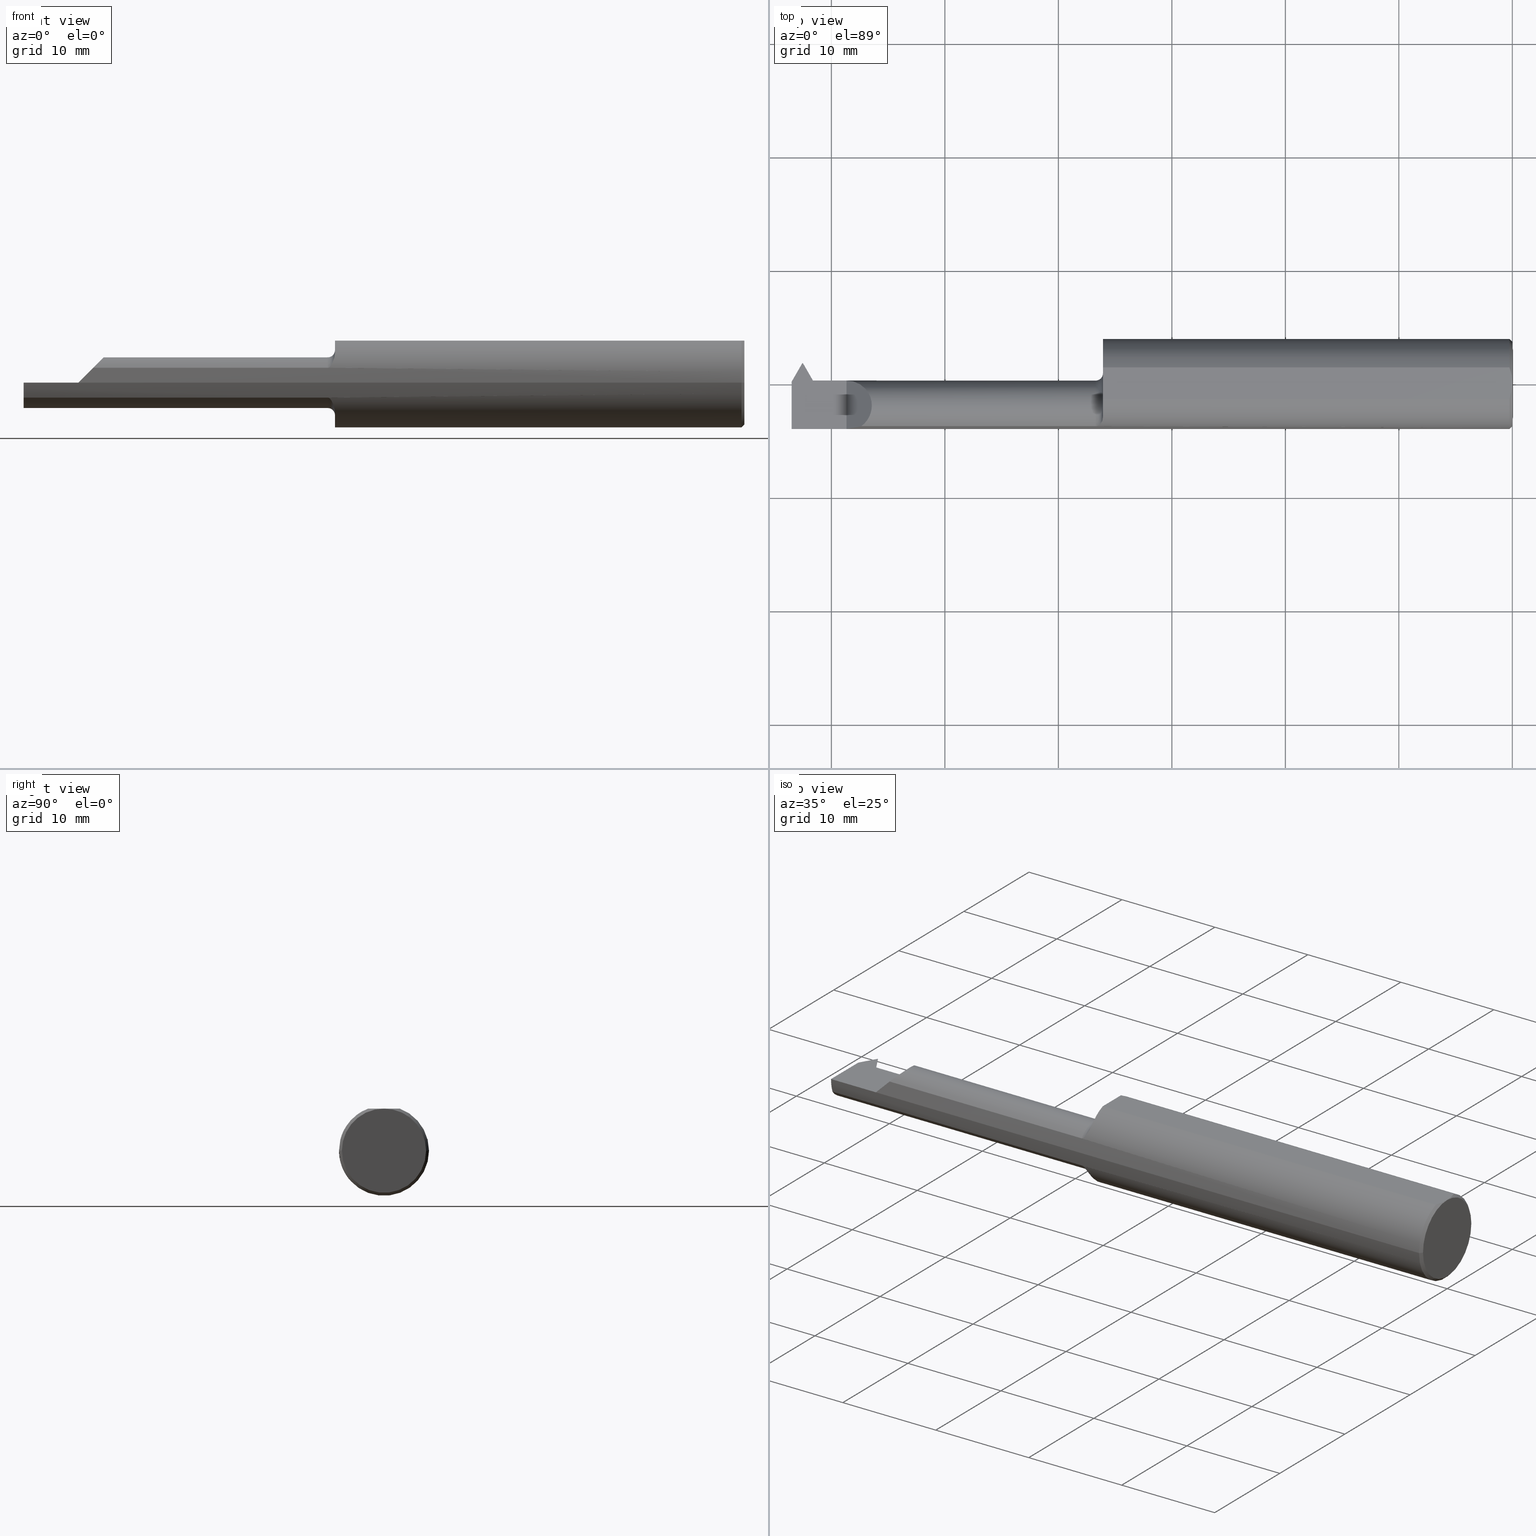
[diagram: canonical four-view strip — front | top / right | iso, engineering-drawing reading convention]
A machine part, canonical four-view strip (front | top / right | iso — engineering-drawing reading convention). The complete STEP part file that produces these views, byte-faithful:
ISO-10303-21;
HEADER;
FILE_DESCRIPTION (( 'STEP AP203' ),
    '1' );
FILE_NAME ('231789-LHTT2301000.STEP',
    '2025-01-23T22:16:56',
    ( '' ),
    ( '' ),
    'SwSTEP 2.0',
    'SolidWorks 2024',
    '' );
FILE_SCHEMA (( 'CONFIG_CONTROL_DESIGN' ));
ENDSEC;

DATA;
#1 = FACE_OUTER_BOUND ( 'NONE', #214, .T. ) ;
#2 = VERTEX_POINT ( 'NONE', #865 ) ;
#3 = DIRECTION ( 'NONE',  ( -1.000000000000000000, -1.301231752219315598E-17, -0.000000000000000000 ) ) ;
#4 = VECTOR ( 'NONE', #535, 39.37007874015748143 ) ;
#5 = CARTESIAN_POINT ( 'NONE',  ( -2.500000000000000000, 0.01189999999999992973, 8.875653457662611807E-19 ) ) ;
#6 = EDGE_CURVE ( 'NONE', #96, #713, #406, .T. ) ;
#7 = ORIENTED_EDGE ( 'NONE', *, *, #476, .F. ) ;
#8 = CIRCLE ( 'NONE', #468, 0.08800000000000000877 ) ;
#9 = AXIS2_PLACEMENT_3D ( 'NONE', #464, #116, #854 ) ;
#10 = VERTEX_POINT ( 'NONE', #260 ) ;
#11 = DIRECTION ( 'NONE',  ( 1.000000000000000000, 0.000000000000000000, 0.000000000000000000 ) ) ;
#12 = EDGE_CURVE ( 'NONE', #2, #224, #332, .T. ) ;
#13 = VERTEX_POINT ( 'NONE', #119 ) ;
#14 = PERSON_AND_ORGANIZATION_ROLE ( 'creator' ) ;
#15 = VERTEX_POINT ( 'NONE', #729 ) ;
#16 = CARTESIAN_POINT ( 'NONE',  ( -1.789208973554242034E-17, 0.1461000000000008681, 1.789208973554290722E-17 ) ) ;
#17 = ORIENTED_EDGE ( 'NONE', *, *, #275, .T. ) ;
#18 = COORDINATED_UNIVERSAL_TIME_OFFSET ( 8, 0, .BEHIND. ) ;
#19 = VECTOR ( 'NONE', #158, 39.37007874015748854 ) ;
#20 = DIRECTION ( 'NONE',  ( 0.5000000000000074385, -0.8660254037844342667, 0.000000000000000000 ) ) ;
#21 = ADVANCED_FACE ( 'NONE', ( #529 ), #328, .T. ) ;
#22 = AXIS2_PLACEMENT_3D ( 'NONE', #335, #115, #398 ) ;
#23 = DIRECTION ( 'NONE',  ( 0.000000000000000000, 1.000000000000000000, 0.000000000000000000 ) ) ;
#24 = ORIENTED_EDGE ( 'NONE', *, *, #536, .T. ) ;
#25 = PERSON_AND_ORGANIZATION ( #259, #169 ) ;
#26 = CARTESIAN_POINT ( 'NONE',  ( -2.500000000000000000, -0.003960005143579985523, -0.03000000000000030767 ) ) ;
#27 = ADVANCED_FACE ( 'NONE', ( #846 ), #579, .F. ) ;
#28 = EDGE_LOOP ( 'NONE', ( #644, #305 ) ) ;
#29 = CARTESIAN_POINT ( 'NONE',  ( -0.009999999999999073866, 2.437047130303233649E-16, 0.000000000000000000 ) ) ;
#30 = ORIENTED_EDGE ( 'NONE', *, *, #86, .F. ) ;
#31 = DIRECTION ( 'NONE',  ( -0.7071067811865368036, 0.7071067811865583419, 8.659560562355067211E-17 ) ) ;
#32 = VERTEX_POINT ( 'NONE', #471 ) ;
#33 = ADVANCED_FACE ( 'NONE', ( #55 ), #249, .F. ) ;
#34 = VERTEX_POINT ( 'NONE', #108 ) ;
#35 = DIRECTION ( 'NONE',  ( 1.000000000000000000, 1.224646799147352961E-16, -0.000000000000000000 ) ) ;
#36 = ORIENTED_EDGE ( 'NONE', *, *, #12, .T. ) ;
#37 = EDGE_CURVE ( 'NONE', #34, #790, #402, .T. ) ;
#38 = CARTESIAN_POINT ( 'NONE',  ( -1.420000000000000151, -0.1142537450716694658, 0.1063639588253750545 ) ) ;
#39 = DIRECTION ( 'NONE',  ( 0.000000000000000000, 1.000000000000000000, 0.000000000000000000 ) ) ;
#40 = ORIENTED_EDGE ( 'NONE', *, *, #662, .F. ) ;
#41 = CARTESIAN_POINT ( 'NONE',  ( -2.500000000000000000, -0.1561000000000000720, 8.875653457662611807E-19 ) ) ;
#42 = FACE_OUTER_BOUND ( 'NONE', #271, .T. ) ;
#43 = CARTESIAN_POINT ( 'NONE',  ( -2.292330217250612812, -0.1561000000000000443, 0.01766978274938703006 ) ) ;
#44 = CARTESIAN_POINT ( 'NONE',  ( -1.422189633566598221, -0.1292798516107861451, 0.08769141204664816780 ) ) ;
#45 = VECTOR ( 'NONE', #284, 39.37007874015748143 ) ;
#46 = ORIENTED_EDGE ( 'NONE', *, *, #437, .F. ) ;
#47 = VECTOR ( 'NONE', #569, 39.37007874015748854 ) ;
#48 = VERTEX_POINT ( 'NONE', #38 ) ;
#49 = PLANE ( 'NONE',  #80 ) ;
#50 = CC_DESIGN_PERSON_AND_ORGANIZATION_ASSIGNMENT ( #25, #362, ( #679 ) ) ;
#51 = DIRECTION ( 'NONE',  ( 0.000000000000000000, -0.1993679344171976064, -0.9799247046208294787 ) ) ;
#52 = CARTESIAN_POINT ( 'NONE',  ( -1.445000000000000062, -0.07610000000000005649, 0.000000000000000000 ) ) ;
#53 = CARTESIAN_POINT ( 'NONE',  ( -2.419116291096571558, 0.01189999999999994187, -0.009794397791003101386 ) ) ;
#54 = DIRECTION ( 'NONE',  ( 0.1143501000964193132, 0.1980601832175917787, 0.9734969021171833159 ) ) ;
#55 = FACE_OUTER_BOUND ( 'NONE', #243, .T. ) ;
#56 = DIRECTION ( 'NONE',  ( 0.000000000000000000, -1.000000000000000000, 0.000000000000000000 ) ) ;
#57 = ORIENTED_EDGE ( 'NONE', *, *, #337, .T. ) ;
#58 = DIRECTION ( 'NONE',  ( -0.5000000000000160982, 0.000000000000000000, -0.8660254037844292707 ) ) ;
#59 = EDGE_CURVE ( 'NONE', #10, #435, #288, .T. ) ;
#60 = CARTESIAN_POINT ( 'NONE',  ( -2.500000000000000000, 0.07189999999999992231, 8.875653457662611807E-19 ) ) ;
#61 = DIRECTION ( 'NONE',  ( -1.000000000000000000, -1.301231752219315598E-17, -0.000000000000000000 ) ) ;
#62 = ORIENTED_EDGE ( 'NONE', *, *, #758, .T. ) ;
#63 = CARTESIAN_POINT ( 'NONE',  ( 0.000000000000000000, 2.449293598294705921E-16, 0.000000000000000000 ) ) ;
#64 =( NAMED_UNIT ( * ) PLANE_ANGLE_UNIT ( ) SI_UNIT ( $, .RADIAN. ) );
#65 = EDGE_CURVE ( 'NONE', #76, #32, #519, .T. ) ;
#66 = AXIS2_PLACEMENT_3D ( 'NONE', #610, #856, #278 ) ;
#67 = LINE ( 'NONE', #141, #210 ) ;
#68 = CARTESIAN_POINT ( 'NONE',  ( -2.460750000000000437, 0.07189999999999995006, 0.000000000000000000 ) ) ;
#69 = DIRECTION ( 'NONE',  ( 0.000000000000000000, -1.000000000000000000, 0.000000000000000000 ) ) ;
#70 = FACE_OUTER_BOUND ( 'NONE', #245, .T. ) ;
#71 = ADVANCED_FACE ( 'NONE', ( #42 ), #327, .F. ) ;
#72 = FACE_OUTER_BOUND ( 'NONE', #803, .T. ) ;
#73 = ORIENTED_EDGE ( 'NONE', *, *, #624, .F. ) ;
#74 = CARTESIAN_POINT ( 'NONE',  ( -1.873285267473298710, 1.081541753444633436, -0.03000000000001948330 ) ) ;
#75 = LINE ( 'NONE', #499, #118 ) ;
#76 = VERTEX_POINT ( 'NONE', #129 ) ;
#77 = AXIS2_PLACEMENT_3D ( 'NONE', #90, #172, #840 ) ;
#78 = PERSON_AND_ORGANIZATION_ROLE ( 'design_supplier' ) ;
#79 = AXIS2_PLACEMENT_3D ( 'NONE', #872, #680, #531 ) ;
#80 = AXIS2_PLACEMENT_3D ( 'NONE', #861, #810, #262 ) ;
#81 = ORIENTED_EDGE ( 'NONE', *, *, #784, .F. ) ;
#82 = SECURITY_CLASSIFICATION_LEVEL ( 'unclassified' ) ;
#83 = CARTESIAN_POINT ( 'NONE',  ( -2.399999999999999911, 0.06098089297201405440, -0.02999999999999999542 ) ) ;
#84 = ORIENTED_EDGE ( 'NONE', *, *, #337, .F. ) ;
#85 = COORDINATED_UNIVERSAL_TIME_OFFSET ( 8, 0, .BEHIND. ) ;
#86 = EDGE_CURVE ( 'NONE', #32, #622, #675, .T. ) ;
#87 = CARTESIAN_POINT ( 'NONE',  ( -2.328554589673576647, -0.08065439417504351172, -0.4549193812860089503 ) ) ;
#88 = CC_DESIGN_PERSON_AND_ORGANIZATION_ASSIGNMENT ( #623, #14, ( #312 ) ) ;
#89 = ORIENTED_EDGE ( 'NONE', *, *, #227, .F. ) ;
#90 = CARTESIAN_POINT ( 'NONE',  ( 9.558368267345076472E-18, 2.449293598294705921E-16, 0.000000000000000000 ) ) ;
#91 = EDGE_LOOP ( 'NONE', ( #701, #481, #553, #635 ) ) ;
#92 = SHAPE_DEFINITION_REPRESENTATION ( #505, #613 ) ;
#93 = VECTOR ( 'NONE', #384, 39.37007874015748143 ) ;
#94 = AXIS2_PLACEMENT_3D ( 'NONE', #763, #497, #11 ) ;
#95 = DIRECTION ( 'NONE',  ( 0.000000000000000000, 1.000000000000000000, 0.000000000000000000 ) ) ;
#96 = VERTEX_POINT ( 'NONE', #681 ) ;
#97 = CARTESIAN_POINT ( 'NONE',  ( -2.500000000000000000, -6.123233995736767268E-17, 0.000000000000000000 ) ) ;
#98 = ORIENTED_EDGE ( 'NONE', *, *, #541, .T. ) ;
#99 = APPROVAL_STATUS ( 'not_yet_approved' ) ;
#100 = CARTESIAN_POINT ( 'NONE',  ( -1.814428886733931101, -1.047561006181289001, 0.000000000000000000 ) ) ;
#101 = ORIENTED_EDGE ( 'NONE', *, *, #853, .F. ) ;
#102 = ADVANCED_FACE ( 'NONE', ( #542 ), #544, .F. ) ;
#103 = CARTESIAN_POINT ( 'NONE',  ( -2.258241905890881807, -0.1472695137976346713, 0.05175809410911782343 ) ) ;
#104 = ORIENTED_EDGE ( 'NONE', *, *, #558, .F. ) ;
#105 = VERTEX_POINT ( 'NONE', #687 ) ;
#106 = CARTESIAN_POINT ( 'NONE',  ( -2.310000000000000053, -0.2500000000000000000, 0.000000000000000000 ) ) ;
#107 = CARTESIAN_POINT ( 'NONE',  ( -1.443446618368614098, -0.1472695137976343382, -0.05175809410911850345 ) ) ;
#108 = CARTESIAN_POINT ( 'NONE',  ( -3.241309669837331952E-33, 2.086455426436077518E-16, 0.1461000000000000354 ) ) ;
#109 = CARTESIAN_POINT ( 'NONE',  ( -1.819714732526711343, -1.050612790672645458, -0.03000000000000922762 ) ) ;
#110 = VECTOR ( 'NONE', #178, 39.37007874015748854 ) ;
#111 = ORIENTED_EDGE ( 'NONE', *, *, #668, .F. ) ;
#112 = CARTESIAN_POINT ( 'NONE',  ( -2.429632881043807480, -0.05220356898271236862, -0.08800000000000009204 ) ) ;
#113 = CARTESIAN_POINT ( 'NONE',  ( -0.004370115738486220897, 0.03710696786819750459, 0.1461000000000000076 ) ) ;
#114 = CARTESIAN_POINT ( 'NONE',  ( -1.439325941459030700, -0.1465552322353809167, 0.05375321273095375052 ) ) ;
#115 = DIRECTION ( 'NONE',  ( -1.000000000000000000, -1.224646799147319927E-16, 0.000000000000000000 ) ) ;
#116 = DIRECTION ( 'NONE',  ( -1.000000000000000000, -1.224646799147352961E-16, 0.000000000000000000 ) ) ;
#117 = AXIS2_PLACEMENT_3D ( 'NONE', #192, #343, #795 ) ;
#118 = VECTOR ( 'NONE', #617, 39.37007874015748143 ) ;
#119 = CARTESIAN_POINT ( 'NONE',  ( -2.310000000000000053, 0.01189999999999987769, 0.000000000000000000 ) ) ;
#120 = AXIS2_PLACEMENT_3D ( 'NONE', #547, #606, #58 ) ;
#121 = LINE ( 'NONE', #678, #270 ) ;
#122 = DIRECTION ( 'NONE',  ( -1.000000000000000000, -1.553500558300393113E-17, -0.000000000000000000 ) ) ;
#123 = CARTESIAN_POINT ( 'NONE',  ( -0.009999999999999073866, 2.437047130303233649E-16, 0.000000000000000000 ) ) ;
#124 = EDGE_LOOP ( 'NONE', ( #30, #73, #17, #418, #144, #404, #7, #706 ) ) ;
#125 = ADVANCED_FACE ( 'NONE', ( #1 ), #49, .T. ) ;
#126 = CARTESIAN_POINT ( 'NONE',  ( -2.500000000000000000, 0.1811000000000001220, 0.1461000000000000354 ) ) ;
#127 = ORIENTED_EDGE ( 'NONE', *, *, #264, .F. ) ;
#128 = FACE_OUTER_BOUND ( 'NONE', #615, .T. ) ;
#129 = CARTESIAN_POINT ( 'NONE',  ( -2.462506354991547575, 0.06098089297201303438, -0.03000000000000117503 ) ) ;
#130 = CYLINDRICAL_SURFACE ( 'NONE', #513, 0.08800000000000002265 ) ;
#131 = DIRECTION ( 'NONE',  ( 0.7071067811865437980, 0.000000000000000000, -0.7071067811865513475 ) ) ;
#132 = EDGE_CURVE ( 'NONE', #730, #555, #407, .T. ) ;
#133 = DIRECTION ( 'NONE',  ( 1.224646799147319927E-16, -1.000000000000000000, 0.000000000000000000 ) ) ;
#134 = CARTESIAN_POINT ( 'NONE',  ( -2.500000000000000000, -0.04738773832811999515, -0.08318416934540782959 ) ) ;
#135 = LOCAL_TIME ( 14, 16, 56.00000000000000000, #757 ) ;
#136 = CIRCLE ( 'NONE', #601, 0.1561000000000000165 ) ;
#137 = AXIS2_PLACEMENT_3D ( 'NONE', #63, #747, #138 ) ;
#138 = DIRECTION ( 'NONE',  ( 1.224646799147319927E-16, -1.000000000000000000, 0.000000000000000000 ) ) ;
#139 = EDGE_LOOP ( 'NONE', ( #238, #173, #723, #285 ) ) ;
#140 = LINE ( 'NONE', #350, #485 ) ;
#141 = CARTESIAN_POINT ( 'NONE',  ( -2.500000000000000000, 0.05497272050753895106, 0.1461000000000000076 ) ) ;
#142 = EDGE_CURVE ( 'NONE', #777, #155, #740, .T. ) ;
#143 = DIRECTION ( 'NONE',  ( -2.196953021474273815E-33, 1.414195192744475008E-16, -1.000000000000000000 ) ) ;
#144 = ORIENTED_EDGE ( 'NONE', *, *, #422, .T. ) ;
#145 = PLANE ( 'NONE',  #216 ) ;
#146 = CARTESIAN_POINT ( 'NONE',  ( -2.206585760359398130, 0.01189999999999993840, 0.1034142396406013825 ) ) ;
#147 = APPROVAL ( #99, 'UNSPECIFIED' ) ;
#148 = ORIENTED_EDGE ( 'NONE', *, *, #6, .T. ) ;
#149 = CARTESIAN_POINT ( 'NONE',  ( -2.462506354991547575, 0.06098089297201353398, -0.03000000000000051237 ) ) ;
#150 = CARTESIAN_POINT ( 'NONE',  ( -2.500000000000000000, -0.1561000000000000720, 1.911673653469018376E-17 ) ) ;
#151 = ORIENTED_EDGE ( 'NONE', *, *, #348, .T. ) ;
#152 = APPROVAL_ROLE ( '' ) ;
#153 = CYLINDRICAL_SURFACE ( 'NONE', #194, 0.1561000000000000165 ) ;
#154 = ADVANCED_FACE ( 'NONE', ( #191 ), #211, .F. ) ;
#155 = VERTEX_POINT ( 'NONE', #467 ) ;
#156 = PERSON_AND_ORGANIZATION ( #259, #169 ) ;
#157 = DIRECTION ( 'NONE',  ( 1.098490779351301254E-17, -0.7071067811865513475, 0.7071067811865437980 ) ) ;
#158 = DIRECTION ( 'NONE',  ( -0.1423964981743713332, 0.6999011492016904423, 0.6999011492016776748 ) ) ;
#159 = ORIENTED_EDGE ( 'NONE', *, *, #363, .T. ) ;
#160 = DIRECTION ( 'NONE',  ( -0.4999999999999838463, -0.8660254037844478114, 0.000000000000000000 ) ) ;
#161 = ORIENTED_EDGE ( 'NONE', *, *, #394, .T. ) ;
#162 = APPLICATION_PROTOCOL_DEFINITION ( 'international standard', 'config_control_design', 1994, #863 ) ;
#163 = ADVANCED_FACE ( 'NONE', ( #204 ), #798, .F. ) ;
#164 = CARTESIAN_POINT ( 'NONE',  ( -2.500000000000000000, -0.07610000000000008424, -0.08799999999999999489 ) ) ;
#165 = DIRECTION ( 'NONE',  ( 1.000000000000000000, 2.091571120149166951E-14, 0.000000000000000000 ) ) ;
#166 = ORIENTED_EDGE ( 'NONE', *, *, #685, .T. ) ;
#167 = PERSON_AND_ORGANIZATION ( #259, #169 ) ;
#168 = CIRCLE ( 'NONE', #254, 0.1561000000000000165 ) ;
#169 = ORGANIZATION ( 'UNSPECIFIED', 'UNSPECIFIED', '' ) ;
#170 = DIRECTION ( 'NONE',  ( 1.000000000000000000, 1.224646799147352961E-16, -0.000000000000000000 ) ) ;
#171 = ORIENTED_EDGE ( 'NONE', *, *, #501, .F. ) ;
#172 = DIRECTION ( 'NONE',  ( 1.000000000000000000, 1.224646799147352961E-16, -0.000000000000000000 ) ) ;
#173 = ORIENTED_EDGE ( 'NONE', *, *, #321, .F. ) ;
#174 = EDGE_CURVE ( 'NONE', #730, #628, #121, .T. ) ;
#175 = ORIENTED_EDGE ( 'NONE', *, *, #578, .T. ) ;
#176 = DIRECTION ( 'NONE',  ( -1.000000000000000000, 0.000000000000000000, -0.000000000000000000 ) ) ;
#177 = ORIENTED_EDGE ( 'NONE', *, *, #731, .T. ) ;
#178 = DIRECTION ( 'NONE',  ( -0.02328694095509251452, 0.3419273951315133231, 0.9394377972167885504 ) ) ;
#179 = ORIENTED_EDGE ( 'NONE', *, *, #731, .F. ) ;
#180 = LINE ( 'NONE', #247, #252 ) ;
#181 = CIRCLE ( 'NONE', #839, 0.08799999999999992550 ) ;
#182 = EDGE_LOOP ( 'NONE', ( #460, #621, #386, #415 ) ) ;
#183 = B_SPLINE_CURVE_WITH_KNOTS ( 'NONE', 3,
 ( #647, #223, #703, #516, #303, #766 ),
 .UNSPECIFIED., .F., .F.,
 ( 4, 2, 4 ),
 ( 0.001497827971916989567, 0.002206109860466244632, 0.002914391749015499914 ),
 .UNSPECIFIED. ) ;
#184 = VECTOR ( 'NONE', #598, 39.37007874015748143 ) ;
#185 = EDGE_CURVE ( 'NONE', #611, #311, #760, .T. ) ;
#186 = CARTESIAN_POINT ( 'NONE',  ( -1.438181177459765481, -0.1461969813683965669, 0.05472577389935593534 ) ) ;
#187 = DIRECTION ( 'NONE',  ( 0.9799247046208295897, 1.275109140436757286E-17, 0.1993679344171976342 ) ) ;
#188 = EDGE_CURVE ( 'NONE', #48, #642, #390, .T. ) ;
#189 = CARTESIAN_POINT ( 'NONE',  ( -1.423484131199159064, -0.1325297027135589889, 0.08268119770257821577 ) ) ;
#190 = CARTESIAN_POINT ( 'NONE',  ( -1.445000000000000062, -0.07610000000000005649, 0.000000000000000000 ) ) ;
#191 = FACE_OUTER_BOUND ( 'NONE', #484, .T. ) ;
#192 = CARTESIAN_POINT ( 'NONE',  ( -2.500000000000000000, -6.123233995736767268E-17, 0.000000000000000000 ) ) ;
#193 = EDGE_CURVE ( 'NONE', #688, #584, #538, .T. ) ;
#194 = AXIS2_PLACEMENT_3D ( 'NONE', #97, #580, #23 ) ;
#195 = VECTOR ( 'NONE', #793, 39.37007874015748143 ) ;
#196 = CARTESIAN_POINT ( 'NONE',  ( -2.417151050136866708, 0.01027984334874565420, -0.01945386571184650609 ) ) ;
#197 = CARTESIAN_POINT ( 'NONE',  ( -2.460717056391643176, 0.07238371841597715517, 0.001329005425271832797 ) ) ;
#198 = CARTESIAN_POINT ( 'NONE',  ( 6.904318952737417485E-16, 0.009396510398413217627, 0.1461000000000000631 ) ) ;
#199 = ORIENTED_EDGE ( 'NONE', *, *, #456, .F. ) ;
#200 = ORIENTED_EDGE ( 'NONE', *, *, #662, .T. ) ;
#201 = FACE_OUTER_BOUND ( 'NONE', #91, .T. ) ;
#202 = LINE ( 'NONE', #134, #282 ) ;
#203 = CARTESIAN_POINT ( 'NONE',  ( -2.258241905890881807, -0.1472695137976346713, 0.05175809410911782343 ) ) ;
#204 = FACE_OUTER_BOUND ( 'NONE', #638, .T. ) ;
#205 = CARTESIAN_POINT ( 'NONE',  ( -1.420462611252523821, -0.1222547939313148313, -0.09724325067964838254 ) ) ;
#206 = CARTESIAN_POINT ( 'NONE',  ( -2.462506354991546242, 0.002980892972014761392, -0.08799999999999992550 ) ) ;
#207 = ADVANCED_FACE ( 'NONE', ( #341 ), #599, .T. ) ;
#208 = DIRECTION ( 'NONE',  ( 0.000000000000000000, -1.000000000000000000, 0.000000000000000000 ) ) ;
#209 = AXIS2_PLACEMENT_3D ( 'NONE', #608, #859, #265 ) ;
#210 = VECTOR ( 'NONE', #417, 39.37007874015748143 ) ;
#211 = PLANE ( 'NONE',  #525 ) ;
#212 = LINE ( 'NONE', #483, #574 ) ;
#213 = CC_DESIGN_APPROVAL ( #323, ( #251 ) ) ;
#214 = EDGE_LOOP ( 'NONE', ( #453, #726, #375, #246, #89 ) ) ;
#215 = CARTESIAN_POINT ( 'NONE',  ( -2.421108983848621943, 0.01189999999999981004, 0.000000000000000000 ) ) ;
#216 = AXIS2_PLACEMENT_3D ( 'NONE', #595, #419, #692 ) ;
#217 = CC_DESIGN_DATE_AND_TIME_ASSIGNMENT ( #220, #367, ( #251 ) ) ;
#218 = ORIENTED_EDGE ( 'NONE', *, *, #6, .F. ) ;
#219 = ORIENTED_EDGE ( 'NONE', *, *, #86, .T. ) ;
#220 = DATE_AND_TIME ( #695, #714 ) ;
#221 = DIMENSIONAL_EXPONENTS ( 1.000000000000000000, 0.000000000000000000, 0.000000000000000000, 0.000000000000000000, 0.000000000000000000, 0.000000000000000000, 0.000000000000000000 ) ;
#222 = ADVANCED_FACE ( 'NONE', ( #421 ), #355, .F. ) ;
#223 = CARTESIAN_POINT ( 'NONE',  ( -0.006903212852520313608, -0.04617911398309882537, 0.1461000000000000354 ) ) ;
#224 = VERTEX_POINT ( 'NONE', #824 ) ;
#225 = APPROVAL_DATE_TIME ( #488, #323 ) ;
#226 = CARTESIAN_POINT ( 'NONE',  ( -2.174606210947997997, -0.08644537803012208865, 0.1353937890520004461 ) ) ;
#227 = EDGE_CURVE ( 'NONE', #642, #314, #346, .T. ) ;
#228 = DIRECTION ( 'NONE',  ( 1.000000000000000000, 1.224646799147352961E-16, -0.000000000000000000 ) ) ;
#229 = VERTEX_POINT ( 'NONE', #281 ) ;
#230 = CALENDAR_DATE ( 2025, 23, 1 ) ;
#231 = CARTESIAN_POINT ( 'NONE',  ( -1.438188662569929832, -0.1461994008685688073, -0.05471926711676261545 ) ) ;
#232 = CARTESIAN_POINT ( 'NONE',  ( -2.413632881043807465, 0.007084169345407169416, -0.02871226167188161912 ) ) ;
#233 = ORIENTED_EDGE ( 'NONE', *, *, #451, .T. ) ;
#234 = LINE ( 'NONE', #761, #330 ) ;
#235 = APPROVAL_ROLE ( '' ) ;
#236 = EDGE_CURVE ( 'NONE', #13, #435, #383, .T. ) ;
#237 = CARTESIAN_POINT ( 'NONE',  ( -1.426922816836105667, -0.1382559065226666162, 0.07270217924156620326 ) ) ;
#238 = ORIENTED_EDGE ( 'NONE', *, *, #188, .T. ) ;
#239 = LINE ( 'NONE', #106, #850 ) ;
#240 = EDGE_LOOP ( 'NONE', ( #815, #556, #753, #148 ) ) ;
#241 = VECTOR ( 'NONE', #545, 39.37007874015748143 ) ;
#242 = CONICAL_SURFACE ( 'NONE', #298, 0.1461000000000006183, 0.7853981633974638221 ) ;
#243 = EDGE_LOOP ( 'NONE', ( #546, #651, #219, #98 ) ) ;
#244 = CARTESIAN_POINT ( 'NONE',  ( -2.461493645008453690, 0.06098089297201398501, -0.02999999999999987052 ) ) ;
#245 = EDGE_LOOP ( 'NONE', ( #762, #457, #166, #296 ) ) ;
#246 = ORIENTED_EDGE ( 'NONE', *, *, #874, .F. ) ;
#247 = CARTESIAN_POINT ( 'NONE',  ( -2.442105574943187030, -0.01580690852369160890, -0.1361838062394665483 ) ) ;
#248 = ORIENTED_EDGE ( 'NONE', *, *, #424, .F. ) ;
#249 = PLANE ( 'NONE',  #459 ) ;
#250 = EDGE_CURVE ( 'NONE', #76, #841, #287, .T. ) ;
#251 = PRODUCT_DEFINITION ( 'UNKNOWN', '', #312, #522 ) ;
#252 = VECTOR ( 'NONE', #54, 39.37007874015748143 ) ;
#253 = CARTESIAN_POINT ( 'NONE',  ( -2.421108983848621943, -0.05220356898271225760, -0.08799999999999999489 ) ) ;
#254 = AXIS2_PLACEMENT_3D ( 'NONE', #707, #452, #374 ) ;
#255 = AXIS2_PLACEMENT_3D ( 'NONE', #342, #473, #276 ) ;
#256 = VERTEX_POINT ( 'NONE', #277 ) ;
#257 = VECTOR ( 'NONE', #866, 39.37007874015748143 ) ;
#258 = LINE ( 'NONE', #711, #19 ) ;
#259 = PERSON ( 'UNSPECIFIED', 'UNSPECIFIED', 'UNSPECIFIED', ('UNSPECIFIED'), ('UNSPECIFIED'), ('UNSPECIFIED') ) ;
#260 = CARTESIAN_POINT ( 'NONE',  ( -2.310000000000000053, -0.1561000000000000998, 0.000000000000000000 ) ) ;
#261 = VERTEX_POINT ( 'NONE', #543 ) ;
#262 = DIRECTION ( 'NONE',  ( 1.301231752219315598E-17, -1.000000000000000000, 0.000000000000000000 ) ) ;
#263 = CARTESIAN_POINT ( 'NONE',  ( -1.433413277050731072, -0.1440082460785177820, 0.06029952348880251306 ) ) ;
#264 = EDGE_CURVE ( 'NONE', #611, #435, #75, .T. ) ;
#265 = DIRECTION ( 'NONE',  ( 0.4999999999999878431, 0.8660254037844455910, 0.000000000000000000 ) ) ;
#266 = DIRECTION ( 'NONE',  ( -1.000000000000000000, -1.301231752219315598E-17, -0.000000000000000000 ) ) ;
#267 = CARTESIAN_POINT ( 'NONE',  ( -2.421108983848621943, -0.07610000000000008424, 0.000000000000000000 ) ) ;
#268 = APPROVAL_PERSON_ORGANIZATION ( #297, #147, #709 ) ;
#269 = LINE ( 'NONE', #470, #4 ) ;
#270 = VECTOR ( 'NONE', #669, 39.37007874015748143 ) ;
#271 = EDGE_LOOP ( 'NONE', ( #279, #62, #449 ) ) ;
#272 = CARTESIAN_POINT ( 'NONE',  ( -2.415267408189822440, 0.007084169345407244009, -0.02871226167188149769 ) ) ;
#273 = DIRECTION ( 'NONE',  ( 1.000000000000000000, 1.301231752219315598E-17, 0.000000000000000000 ) ) ;
#274 = CARTESIAN_POINT ( 'NONE',  ( -1.420000000000000151, -0.1142537450715593039, -0.1063639588254145785 ) ) ;
#275 = EDGE_CURVE ( 'NONE', #770, #694, #809, .T. ) ;
#276 = DIRECTION ( 'NONE',  ( 0.000000000000000000, -1.000000000000000000, -8.881784197001252323E-16 ) ) ;
#277 = CARTESIAN_POINT ( 'NONE',  ( -2.426108983848622280, 0.01189999999999981004, 0.000000000000000000 ) ) ;
#278 = DIRECTION ( 'NONE',  ( -1.000000000000000000, 0.000000000000000000, 4.671396556664535003E-18 ) ) ;
#279 = ORIENTED_EDGE ( 'NONE', *, *, #755, .F. ) ;
#280 = LENGTH_MEASURE_WITH_UNIT ( LENGTH_MEASURE( 0.02539999999999999897 ), #410 );
#281 = CARTESIAN_POINT ( 'NONE',  ( -0.009999999999999092948, 0.1561000000000002386, 0.000000000000000000 ) ) ;
#282 = VECTOR ( 'NONE', #478, 39.37007874015748143 ) ;
#283 = CIRCLE ( 'NONE', #400, 0.1461000000000006183 ) ;
#284 = DIRECTION ( 'NONE',  ( 1.000000000000000000, 1.301231752219315598E-17, 0.000000000000000000 ) ) ;
#285 = ORIENTED_EDGE ( 'NONE', *, *, #734, .F. ) ;
#286 = PERSON_AND_ORGANIZATION ( #259, #169 ) ;
#287 = LINE ( 'NONE', #149, #698 ) ;
#288 =( BOUNDED_CURVE ( )  B_SPLINE_CURVE ( 3, ( #396, #43, #626, #203 ),
 .UNSPECIFIED., .F., .T. ) 
 B_SPLINE_CURVE_WITH_KNOTS ( ( 4, 4 ),
 ( 4.712388980384689674, 5.050356325447890704 ),
 .UNSPECIFIED. ) 
 CURVE ( )  GEOMETRIC_REPRESENTATION_ITEM ( )  RATIONAL_B_SPLINE_CURVE ( ( 1.000000000000000000, 0.9905041350217796969, 0.9905041350217796969, 1.000000000000000000 ) ) 
 REPRESENTATION_ITEM ( '' )  );
#289 = ORIENTED_EDGE ( 'NONE', *, *, #591, .T. ) ;
#290 = APPROVAL_DATE_TIME ( #702, #412 ) ;
#291 = EDGE_CURVE ( 'NONE', #790, #584, #67, .T. ) ;
#292 = ORIENTED_EDGE ( 'NONE', *, *, #586, .T. ) ;
#293 = DATE_TIME_ROLE ( 'classification_date' ) ;
#294 = EDGE_CURVE ( 'NONE', #96, #15, #697, .T. ) ;
#295 = LINE ( 'NONE', #313, #776 ) ;
#296 = ORIENTED_EDGE ( 'NONE', *, *, #578, .F. ) ;
#297 = PERSON_AND_ORGANIZATION ( #259, #169 ) ;
#298 = AXIS2_PLACEMENT_3D ( 'NONE', #334, #858, #661 ) ;
#299 = PRODUCT ( '231789-LHTT2301000', '231789-LHTT2301000', '', ( #306 ) ) ;
#300 = CARTESIAN_POINT ( 'NONE',  ( -1.435093217728559356, -0.1449997488157368231, -0.05785581108117109767 ) ) ;
#301 = CARTESIAN_POINT ( 'NONE',  ( -2.488969632988080628E-16, 0.01190000000005054549, 0.000000000000000000 ) ) ;
#302 = ORIENTED_EDGE ( 'NONE', *, *, #291, .T. ) ;
#303 = CARTESIAN_POINT ( 'NONE',  ( 6.814946972475936967E-16, -0.009387766318748616556, 0.1461000000000000354 ) ) ;
#304 = ADVANCED_FACE ( 'NONE', ( #70 ), #351, .F. ) ;
#305 = ORIENTED_EDGE ( 'NONE', *, *, #536, .F. ) ;
#306 = MECHANICAL_CONTEXT ( 'NONE', #863, 'mechanical' ) ;
#307 = FACE_OUTER_BOUND ( 'NONE', #240, .T. ) ;
#308 = ORIENTED_EDGE ( 'NONE', *, *, #37, .T. ) ;
#309 = LINE ( 'NONE', #83, #315 ) ;
#310 = CC_DESIGN_DATE_AND_TIME_ASSIGNMENT ( #557, #293, ( #679 ) ) ;
#311 = VERTEX_POINT ( 'NONE', #722 ) ;
#312 = PRODUCT_DEFINITION_FORMATION_WITH_SPECIFIED_SOURCE ( 'ANY', '', #299, .NOT_KNOWN. ) ;
#313 = CARTESIAN_POINT ( 'NONE',  ( -2.399999999999999911, -0.05220356898271225760, -0.08799999999999999489 ) ) ;
#314 = VERTEX_POINT ( 'NONE', #316 ) ;
#315 = VECTOR ( 'NONE', #495, 39.37007874015748143 ) ;
#316 = CARTESIAN_POINT ( 'NONE',  ( -1.420000000000000151, 0.1561000000000000720, 0.000000000000000000 ) ) ;
#317 = VECTOR ( 'NONE', #409, 39.37007874015748143 ) ;
#318 = ORIENTED_EDGE ( 'NONE', *, *, #185, .T. ) ;
#319 = CARTESIAN_POINT ( 'NONE',  ( -2.500000000000000000, 0.007084169345407237070, -0.02871226167188158443 ) ) ;
#320 = ORIENTED_EDGE ( 'NONE', *, *, #807, .F. ) ;
#321 = EDGE_CURVE ( 'NONE', #311, #642, #420, .T. ) ;
#322 = FACE_OUTER_BOUND ( 'NONE', #779, .T. ) ;
#323 = APPROVAL ( #568, 'UNSPECIFIED' ) ;
#324 = ORIENTED_EDGE ( 'NONE', *, *, #422, .F. ) ;
#325 = DIRECTION ( 'NONE',  ( -0.7071067811865364705, -0.7071067811865584529, 0.000000000000000000 ) ) ;
#326 = ADVANCED_FACE ( 'NONE', ( #72 ), #618, .T. ) ;
#327 = PLANE ( 'NONE',  #652 ) ;
#328 = PLANE ( 'NONE',  #498 ) ;
#329 = CARTESIAN_POINT ( 'NONE',  ( -1.445000000000000062, -0.1472695137976347268, 0.05175809410911798997 ) ) ;
#330 = VECTOR ( 'NONE', #781, 39.37007874015748143 ) ;
#331 = VECTOR ( 'NONE', #397, 39.37007874015748143 ) ;
#332 = CIRCLE ( 'NONE', #22, 0.1561000000000000165 ) ;
#333 = DIRECTION ( 'NONE',  ( 0.000000000000000000, 1.000000000000000000, 1.414195192744475008E-16 ) ) ;
#334 = CARTESIAN_POINT ( 'NONE',  ( 0.000000000000000000, 2.449293598294705921E-16, 0.000000000000000000 ) ) ;
#335 = CARTESIAN_POINT ( 'NONE',  ( -0.009999999999999073866, 2.437047130303233649E-16, 0.000000000000000000 ) ) ;
#336 = DIRECTION ( 'NONE',  ( 0.000000000000000000, -1.000000000000000000, 0.000000000000000000 ) ) ;
#337 = EDGE_CURVE ( 'NONE', #10, #2, #414, .T. ) ;
#338 = CARTESIAN_POINT ( 'NONE',  ( -2.415267408189822440, 0.007084169345407244009, -0.02871226167188149769 ) ) ;
#339 = LINE ( 'NONE', #411, #587 ) ;
#340 = CARTESIAN_POINT ( 'NONE',  ( -3.241309669837331952E-33, 2.086455426436077518E-16, 0.1461000000000000354 ) ) ;
#341 = FACE_OUTER_BOUND ( 'NONE', #366, .T. ) ;
#342 = CARTESIAN_POINT ( 'NONE',  ( -1.420000000000000151, 7.102951435054642734E-17, 0.000000000000000000 ) ) ;
#343 = DIRECTION ( 'NONE',  ( 1.000000000000000000, 1.224646799147352961E-16, -0.000000000000000000 ) ) ;
#344 = CIRCLE ( 'NONE', #825, 0.08799999999999988387 ) ;
#345 = EDGE_LOOP ( 'NONE', ( #349, #177, #756 ) ) ;
#346 = CIRCLE ( 'NONE', #373, 0.1561000000000000165 ) ;
#347 = CARTESIAN_POINT ( 'NONE',  ( -1.420000000000000151, 0.05497272050753924943, 0.1461000000000000354 ) ) ;
#348 = EDGE_CURVE ( 'NONE', #841, #447, #212, .T. ) ;
#349 = ORIENTED_EDGE ( 'NONE', *, *, #456, .T. ) ;
#350 = CARTESIAN_POINT ( 'NONE',  ( -2.411877202622478400, -0.08295730613130793130, -0.08799999999999999489 ) ) ;
#351 = PLANE ( 'NONE',  #550 ) ;
#352 = DIRECTION ( 'NONE',  ( 1.000000000000000000, 1.553500558300393113E-17, -0.000000000000000000 ) ) ;
#353 = ORIENTED_EDGE ( 'NONE', *, *, #514, .F. ) ;
#354 = DIRECTION ( 'NONE',  ( 0.4999999999999905076, 0.8660254037844440367, -1.539562105255997719E-14 ) ) ;
#355 = PLANE ( 'NONE',  #604 ) ;
#356 = CIRCLE ( 'NONE', #77, 0.1461000000000006183 ) ;
#357 = VECTOR ( 'NONE', #20, 39.37007874015748854 ) ;
#358 = ORIENTED_EDGE ( 'NONE', *, *, #490, .F. ) ;
#359 = APPROVAL_DATE_TIME ( #823, #147 ) ;
#360 = DIRECTION ( 'NONE',  ( 1.000000000000000000, 1.224646799147352961E-16, -0.000000000000000000 ) ) ;
#361 = ORIENTED_EDGE ( 'NONE', *, *, #193, .F. ) ;
#362 = PERSON_AND_ORGANIZATION_ROLE ( 'classification_officer' ) ;
#363 = EDGE_CURVE ( 'NONE', #565, #13, #614, .T. ) ;
#364 = VERTEX_POINT ( 'NONE', #244 ) ;
#365 = CARTESIAN_POINT ( 'NONE',  ( -2.461493645008455022, 0.002980892972014744045, -0.08799999999999992550 ) ) ;
#366 = EDGE_LOOP ( 'NONE', ( #832, #57, #36, #843, #378, #708, #648 ) ) ;
#367 = DATE_TIME_ROLE ( 'creation_date' ) ;
#368 = CARTESIAN_POINT ( 'NONE',  ( -1.445000000000000062, -0.1472695137976346991, -0.05175809410911803160 ) ) ;
#369 = CARTESIAN_POINT ( 'NONE',  ( -2.500000000000000000, -0.07610000000000007037, -0.08799999999999992550 ) ) ;
#370 = CARTESIAN_POINT ( 'NONE',  ( -1.423462366684949743, -0.1324922991513196591, -0.08274570526434636697 ) ) ;
#371 = EDGE_CURVE ( 'NONE', #688, #48, #168, .T. ) ;
#372 = ORIENTED_EDGE ( 'NONE', *, *, #394, .F. ) ;
#373 = AXIS2_PLACEMENT_3D ( 'NONE', #489, #819, #208 ) ;
#374 = DIRECTION ( 'NONE',  ( 0.000000000000000000, -1.000000000000000000, -6.217248937900875838E-15 ) ) ;
#375 = ORIENTED_EDGE ( 'NONE', *, *, #193, .T. ) ;
#376 = APPROVAL_STATUS ( 'not_yet_approved' ) ;
#377 = LINE ( 'NONE', #438, #331 ) ;
#378 = ORIENTED_EDGE ( 'NONE', *, *, #371, .T. ) ;
#379 = LINE ( 'NONE', #643, #749 ) ;
#380 = ORIENTED_EDGE ( 'NONE', *, *, #476, .T. ) ;
#381 = CARTESIAN_POINT ( 'NONE',  ( -1.429076445919353233, -0.1408180008929574845, -0.06757000550034268638 ) ) ;
#382 = ORIENTED_EDGE ( 'NONE', *, *, #591, .F. ) ;
#383 =( BOUNDED_CURVE ( )  B_SPLINE_CURVE ( 3, ( #752, #146, #226, #492 ),
 .UNSPECIFIED., .F., .T. ) 
 B_SPLINE_CURVE_WITH_KNOTS ( ( 4, 4 ),
 ( 1.570796326794896558, 4.083606959790376578 ),
 .UNSPECIFIED. ) 
 CURVE ( )  GEOMETRIC_REPRESENTATION_ITEM ( )  RATIONAL_B_SPLINE_CURVE ( ( 1.000000000000000000, 0.5394915924057046563, 0.5394915924057046563, 1.000000000000000000 ) ) 
 REPRESENTATION_ITEM ( '' )  );
#384 = DIRECTION ( 'NONE',  ( 1.000000000000000000, 1.224646799147352961E-16, -0.000000000000000000 ) ) ;
#385 = EDGE_LOOP ( 'NONE', ( #84, #320, #292, #233, #720, #502, #573, #581 ) ) ;
#386 = ORIENTED_EDGE ( 'NONE', *, *, #250, .F. ) ;
#387 = DIRECTION ( 'NONE',  ( -1.000000000000000000, -1.224646799147319927E-16, 0.000000000000000000 ) ) ;
#388 = ORIENTED_EDGE ( 'NONE', *, *, #827, .F. ) ;
#389 = ADVANCED_FACE ( 'NONE', ( #507 ), #511, .T. ) ;
#390 = CIRCLE ( 'NONE', #869, 0.1130000000000000865 ) ;
#391 = CARTESIAN_POINT ( 'NONE',  ( -0.0009290501461033225323, 0.01879395969143610179, 0.1461000000000000631 ) ) ;
#392 = DIRECTION ( 'NONE',  ( 1.000000000000000000, 1.224646799147352961E-16, -0.000000000000000000 ) ) ;
#393 = VERTEX_POINT ( 'NONE', #724 ) ;
#394 = EDGE_CURVE ( 'NONE', #841, #105, #379, .T. ) ;
#395 = CARTESIAN_POINT ( 'NONE',  ( 9.558368267345076472E-18, 2.449293598294705921E-16, 0.000000000000000000 ) ) ;
#396 = CARTESIAN_POINT ( 'NONE',  ( -2.310000000000000053, -0.1561000000000000998, 0.000000000000000000 ) ) ;
#397 = DIRECTION ( 'NONE',  ( -6.842104469694102049E-17, 0.3768974211598659640, 0.9262550048032359706 ) ) ;
#398 = DIRECTION ( 'NONE',  ( -1.230512889522860364E-16, 1.000000000000000000, 8.881784197001252323E-16 ) ) ;
#399 = FACE_OUTER_BOUND ( 'NONE', #811, .T. ) ;
#400 = AXIS2_PLACEMENT_3D ( 'NONE', #559, #228, #500 ) ;
#401 = CIRCLE ( 'NONE', #413, 0.1461000000000006183 ) ;
#402 = B_SPLINE_CURVE_WITH_KNOTS ( 'NONE', 3,
 ( #340, #198, #391, #113, #654, #582 ),
 .UNSPECIFIED., .F., .F.,
 ( 4, 2, 4 ),
 ( 0.002914391749015499914, 0.003623333355014890598, 0.004332274961014280848 ),
 .UNSPECIFIED. ) ;
#403 = CARTESIAN_POINT ( 'NONE',  ( -2.399999999999999911, 0.07189999999999992231, 8.875653457662611807E-19 ) ) ;
#404 = ORIENTED_EDGE ( 'NONE', *, *, #363, .F. ) ;
#405 = DIRECTION ( 'NONE',  ( -1.000000000000000000, -1.224646799147319927E-16, 0.000000000000000000 ) ) ;
#406 = LINE ( 'NONE', #537, #184 ) ;
#407 = LINE ( 'NONE', #472, #195 ) ;
#408 = CARTESIAN_POINT ( 'NONE',  ( -2.421108983848621943, 0.01189999999999981004, 0.000000000000000000 ) ) ;
#409 = DIRECTION ( 'NONE',  ( 0.000000000000000000, -0.7071067811865539010, -0.7071067811865411334 ) ) ;
#410 =( LENGTH_UNIT ( ) NAMED_UNIT ( * ) SI_UNIT ( $, .METRE. ) );
#411 = CARTESIAN_POINT ( 'NONE',  ( -2.500000000000000000, 0.6405665699908968946, 0.6145265751344650695 ) ) ;
#412 = APPROVAL ( #376, 'UNSPECIFIED' ) ;
#413 = AXIS2_PLACEMENT_3D ( 'NONE', #395, #170, #769 ) ;
#414 = LINE ( 'NONE', #150, #241 ) ;
#415 = ORIENTED_EDGE ( 'NONE', *, *, #444, .F. ) ;
#416 = CARTESIAN_POINT ( 'NONE',  ( 0.000000000000000000, 2.449293598294705921E-16, 0.000000000000000000 ) ) ;
#417 = DIRECTION ( 'NONE',  ( -1.000000000000000000, -1.224646799147352961E-16, 0.000000000000000000 ) ) ;
#418 = ORIENTED_EDGE ( 'NONE', *, *, #807, .T. ) ;
#419 = DIRECTION ( 'NONE',  ( -0.7745966692414938404, 0.4472135954999448271, -0.4472135954999529317 ) ) ;
#420 = B_SPLINE_CURVE_WITH_KNOTS ( 'NONE', 3,
 ( #368, #107, #653, #630, #231, #300, #710, #381, #645, #370, #634, #205, #480, #620 ),
 .UNSPECIFIED., .F., .F.,
 ( 4, 2, 2, 2, 2, 2, 4 ),
 ( 1.961733332188614115E-07, 0.0001163117065468609942, 0.0002324272397605031204, 0.0004646583061877737663, 0.0009291204390423037822, 0.001393582571896834557, 0.001858044704751365440 ),
 .UNSPECIFIED. ) ;
#421 = FACE_OUTER_BOUND ( 'NONE', #182, .T. ) ;
#422 = EDGE_CURVE ( 'NONE', #10, #13, #239, .T. ) ;
#423 = EDGE_LOOP ( 'NONE', ( #704, #515, #24, #867, #512, #159, #600, #127, #318, #780, #821, #388 ) ) ;
#424 = EDGE_CURVE ( 'NONE', #229, #2, #664, .T. ) ;
#425 = ORIENTED_EDGE ( 'NONE', *, *, #132, .F. ) ;
#426 = APPLICATION_PROTOCOL_DEFINITION ( 'international standard', 'config_control_design', 1994, #699 ) ;
#427 = AXIS2_PLACEMENT_3D ( 'NONE', #673, #131, #736 ) ;
#428 = LINE ( 'NONE', #16, #440 ) ;
#429 = ORIENTED_EDGE ( 'NONE', *, *, #758, .F. ) ;
#430 = PERSON_AND_ORGANIZATION_ROLE ( 'creator' ) ;
#431 = ADVANCED_FACE ( 'NONE', ( #835 ), #715, .T. ) ;
#432 = DIRECTION ( 'NONE',  ( 0.5000000000000075495, -0.8660254037844342667, 0.000000000000000000 ) ) ;
#433 = LINE ( 'NONE', #87, #47 ) ;
#434 = DIRECTION ( 'NONE',  ( -1.224646799147352961E-16, 1.000000000000000000, 0.000000000000000000 ) ) ;
#435 = VERTEX_POINT ( 'NONE', #103 ) ;
#436 = PERSON_AND_ORGANIZATION ( #259, #169 ) ;
#437 = EDGE_CURVE ( 'NONE', #224, #34, #183, .T. ) ;
#438 = CARTESIAN_POINT ( 'NONE',  ( -2.500000000000000000, 0.007075613864141737028, -0.002879099820987786416 ) ) ;
#439 = ORIENTED_EDGE ( 'NONE', *, *, #142, .T. ) ;
#440 = VECTOR ( 'NONE', #31, 39.37007874015748143 ) ;
#441 = FACE_OUTER_BOUND ( 'NONE', #450, .T. ) ;
#442 = ORIENTED_EDGE ( 'NONE', *, *, #514, .T. ) ;
#443 = VECTOR ( 'NONE', #743, 39.37007874015748143 ) ;
#444 = EDGE_CURVE ( 'NONE', #364, #76, #309, .T. ) ;
#445 = AXIS2_PLACEMENT_3D ( 'NONE', #190, #465, #735 ) ;
#446 = FACE_OUTER_BOUND ( 'NONE', #772, .T. ) ;
#447 = VERTEX_POINT ( 'NONE', #365 ) ;
#448 = LINE ( 'NONE', #566, #93 ) ;
#449 = ORIENTED_EDGE ( 'NONE', *, *, #816, .T. ) ;
#450 = EDGE_LOOP ( 'NONE', ( #358, #667, #716, #487 ) ) ;
#451 = EDGE_CURVE ( 'NONE', #625, #311, #234, .T. ) ;
#452 = DIRECTION ( 'NONE',  ( 1.000000000000000000, 1.301231752219315598E-17, 0.000000000000000000 ) ) ;
#453 = ORIENTED_EDGE ( 'NONE', *, *, #188, .F. ) ;
#454 = CC_DESIGN_SECURITY_CLASSIFICATION ( #679, ( #312 ) ) ;
#455 = DIRECTION ( 'NONE',  ( 1.000000000000000000, -0.000000000000000000, 0.000000000000000000 ) ) ;
#456 = EDGE_CURVE ( 'NONE', #34, #261, #356, .T. ) ;
#457 = ORIENTED_EDGE ( 'NONE', *, *, #541, .F. ) ;
#458 = VECTOR ( 'NONE', #325, 39.37007874015748854 ) ;
#459 = AXIS2_PLACEMENT_3D ( 'NONE', #403, #672, #802 ) ;
#460 = ORIENTED_EDGE ( 'NONE', *, *, #768, .F. ) ;
#461 = LINE ( 'NONE', #657, #357 ) ;
#462 = EDGE_CURVE ( 'NONE', #777, #828, #826, .T. ) ;
#463 = ORIENTED_EDGE ( 'NONE', *, *, #853, .T. ) ;
#464 = CARTESIAN_POINT ( 'NONE',  ( -2.500000000000000000, -6.123233995736767268E-17, 0.000000000000000000 ) ) ;
#465 = DIRECTION ( 'NONE',  ( -1.000000000000000000, -1.301231752219315598E-17, -0.000000000000000000 ) ) ;
#466 = CC_DESIGN_PERSON_AND_ORGANIZATION_ASSIGNMENT ( #436, #639, ( #299 ) ) ;
#467 = CARTESIAN_POINT ( 'NONE',  ( -2.413632881043807465, -0.04738773832811999515, -0.08318416934540782959 ) ) ;
#468 = AXIS2_PLACEMENT_3D ( 'NONE', #725, #455, #518 ) ;
#469 = AXIS2_PLACEMENT_3D ( 'NONE', #301, #718, #51 ) ;
#470 = CARTESIAN_POINT ( 'NONE',  ( -2.500000000000000000, -0.05497272050753911760, 0.1461000000000000076 ) ) ;
#471 = CARTESIAN_POINT ( 'NONE',  ( -2.463250000000000384, 0.07189999999999988067, 0.000000000000000000 ) ) ;
#472 = CARTESIAN_POINT ( 'NONE',  ( -2.421108983848621943, 0.01189999999999979963, -0.08799999999999999489 ) ) ;
#473 = DIRECTION ( 'NONE',  ( 1.000000000000000000, 1.301231752219315598E-17, 0.000000000000000000 ) ) ;
#474 = CARTESIAN_POINT ( 'NONE',  ( -2.421108983848621943, -0.04738773832811973147, -0.08318416934540759367 ) ) ;
#475 = CARTESIAN_POINT ( 'NONE',  ( -2.421108983848621943, 0.01189999999999979963, 0.000000000000000000 ) ) ;
#476 = EDGE_CURVE ( 'NONE', #256, #565, #571, .T. ) ;
#477 = PLANE ( 'NONE',  #120 ) ;
#478 = DIRECTION ( 'NONE',  ( 1.000000000000000000, 1.301231752219315598E-17, 0.000000000000000000 ) ) ;
#479 = ADVANCED_FACE ( 'NONE', ( #441 ), #153, .T. ) ;
#480 = CARTESIAN_POINT ( 'NONE',  ( -1.419999999999964846, -0.1183915220908337562, -0.1019192528753025129 ) ) ;
#481 = ORIENTED_EDGE ( 'NONE', *, *, #501, .T. ) ;
#482 = LOCAL_TIME ( 14, 16, 56.00000000000000000, #18 ) ;
#483 = CARTESIAN_POINT ( 'NONE',  ( -2.399999999999999911, 0.002980892972014675957, -0.08799999999999999489 ) ) ;
#484 = EDGE_LOOP ( 'NONE', ( #361, #560, #576, #308, #302 ) ) ;
#485 = VECTOR ( 'NONE', #744, 39.37007874015748854 ) ;
#486 = DIRECTION ( 'NONE',  ( 0.000000000000000000, 0.7071067811865411334, -0.7071067811865539010 ) ) ;
#487 = ORIENTED_EDGE ( 'NONE', *, *, #548, .T. ) ;
#488 = DATE_AND_TIME ( #230, #666 ) ;
#489 = CARTESIAN_POINT ( 'NONE',  ( -1.420000000000000151, 7.102951435054642734E-17, 0.000000000000000000 ) ) ;
#490 = EDGE_CURVE ( 'NONE', #314, #229, #448, .T. ) ;
#491 = ORIENTED_EDGE ( 'NONE', *, *, #462, .F. ) ;
#492 = CARTESIAN_POINT ( 'NONE',  ( -2.258241905890881807, -0.1472695137976346713, 0.05175809410911782343 ) ) ;
#493 = APPROVAL_PERSON_ORGANIZATION ( #508, #412, #152 ) ;
#494 =( BOUNDED_CURVE ( )  B_SPLINE_CURVE ( 3, ( #215, #53, #196, #272 ),
 .UNSPECIFIED., .F., .T. ) 
 B_SPLINE_CURVE_WITH_KNOTS ( ( 4, 4 ),
 ( 1.570796326794896780, 1.903157296839100399 ),
 .UNSPECIFIED. ) 
 CURVE ( )  GEOMETRIC_REPRESENTATION_ITEM ( )  RATIONAL_B_SPLINE_CURVE ( ( 1.000000000000000000, 0.9908158471105027454, 0.9908158471105027454, 1.000000000000000000 ) ) 
 REPRESENTATION_ITEM ( '' )  );
#495 = DIRECTION ( 'NONE',  ( -1.000000000000000000, -1.553500558300393113E-17, -0.000000000000000000 ) ) ;
#496 = ORIENTED_EDGE ( 'NONE', *, *, #845, .T. ) ;
#497 = DIRECTION ( 'NONE',  ( 0.000000000000000000, 0.000000000000000000, 1.000000000000000000 ) ) ;
#498 = AXIS2_PLACEMENT_3D ( 'NONE', #475, #860, #663 ) ;
#499 = CARTESIAN_POINT ( 'NONE',  ( -1.933054491924310891, -0.1472695137976346158, 0.05175809410911793446 ) ) ;
#500 = DIRECTION ( 'NONE',  ( -1.224646799147352961E-16, 1.000000000000000000, 0.000000000000000000 ) ) ;
#501 = EDGE_CURVE ( 'NONE', #393, #229, #428, .T. ) ;
#502 = ORIENTED_EDGE ( 'NONE', *, *, #227, .T. ) ;
#503 = CALENDAR_DATE ( 2025, 23, 1 ) ;
#504 = LINE ( 'NONE', #164, #788 ) ;
#505 = PRODUCT_DEFINITION_SHAPE ( 'NONE', 'NONE',  #251 ) ;
#506 = EDGE_LOOP ( 'NONE', ( #425, #510, #496 ) ) ;
#507 = FACE_OUTER_BOUND ( 'NONE', #28, .T. ) ;
#508 = PERSON_AND_ORGANIZATION ( #259, #169 ) ;
#509 = CARTESIAN_POINT ( 'NONE',  ( -1.441954860809192995, -0.1470959542221379757, 0.05225537509141320314 ) ) ;
#510 = ORIENTED_EDGE ( 'NONE', *, *, #174, .T. ) ;
#511 = PLANE ( 'NONE',  #712 ) ;
#512 = ORIENTED_EDGE ( 'NONE', *, *, #816, .F. ) ;
#513 = AXIS2_PLACEMENT_3D ( 'NONE', #676, #61, #806 ) ;
#514 = EDGE_CURVE ( 'NONE', #730, #713, #295, .T. ) ;
#515 = ORIENTED_EDGE ( 'NONE', *, *, #558, .T. ) ;
#516 = CARTESIAN_POINT ( 'NONE',  ( -0.0009113193687663462966, -0.01867274705588926886, 0.1460999999999999799 ) ) ;
#517 = ORIENTED_EDGE ( 'NONE', *, *, #784, .T. ) ;
#518 = DIRECTION ( 'NONE',  ( 0.000000000000000000, -8.731048275205386309E-16, 1.000000000000000000 ) ) ;
#519 = LINE ( 'NONE', #659, #110 ) ;
#520 = VECTOR ( 'NONE', #739, 39.37007874015748854 ) ;
#521 = EDGE_CURVE ( 'NONE', #393, #34, #283, .T. ) ;
#522 = DESIGN_CONTEXT ( 'detailed design', #699, 'design' ) ;
#523 = CARTESIAN_POINT ( 'NONE',  ( -1.429024368971160364, -0.1407725817217516939, 0.06766890069849768041 ) ) ;
#524 = CIRCLE ( 'NONE', #255, 0.1561000000000000165 ) ;
#525 = AXIS2_PLACEMENT_3D ( 'NONE', #126, #143, #333 ) ;
#526 = DIRECTION ( 'NONE',  ( 0.1993679344171976064, 0.000000000000000000, -0.9799247046208294787 ) ) ;
#527 = CARTESIAN_POINT ( 'NONE',  ( 1.789208973554242034E-17, -0.1461000000000003962, 0.000000000000000000 ) ) ;
#528 = CC_DESIGN_PERSON_AND_ORGANIZATION_ASSIGNMENT ( #167, #78, ( #312 ) ) ;
#529 = FACE_OUTER_BOUND ( 'NONE', #506, .T. ) ;
#530 = CARTESIAN_POINT ( 'NONE',  ( -2.413632881043807465, 0.6503230061517655258, 0.6145265751344650695 ) ) ;
#531 = DIRECTION ( 'NONE',  ( 1.000000000000000000, 0.000000000000000000, -0.000000000000000000 ) ) ;
#532 = CYLINDRICAL_SURFACE ( 'NONE', #117, 0.1561000000000000165 ) ;
#533 = CARTESIAN_POINT ( 'NONE',  ( -1.420000000000000151, 0.1811000000000001220, 0.1461000000000000354 ) ) ;
#534 = PLANE ( 'NONE',  #79 ) ;
#535 = DIRECTION ( 'NONE',  ( 1.000000000000000000, 1.224646799147352961E-16, -0.000000000000000000 ) ) ;
#536 = EDGE_CURVE ( 'NONE', #155, #777, #8, .T. ) ;
#537 = CARTESIAN_POINT ( 'NONE',  ( -2.429632881043807480, 0.6503230061517655258, 0.6145265751344650695 ) ) ;
#538 = LINE ( 'NONE', #533, #257 ) ;
#539 = DIRECTION ( 'NONE',  ( 1.000000000000000000, 1.224646799147352961E-16, -0.000000000000000000 ) ) ;
#540 = CARTESIAN_POINT ( 'NONE',  ( -2.500000000000000000, -6.123233995736767268E-17, 0.000000000000000000 ) ) ;
#541 = EDGE_CURVE ( 'NONE', #622, #364, #745, .T. ) ;
#542 = FACE_OUTER_BOUND ( 'NONE', #124, .T. ) ;
#543 = CARTESIAN_POINT ( 'NONE',  ( 2.745045800288797907E-17, -0.1461000000000003685, 0.000000000000000000 ) ) ;
#544 = PLANE ( 'NONE',  #66 ) ;
#545 = DIRECTION ( 'NONE',  ( 1.000000000000000000, 1.224646799147352961E-16, -0.000000000000000000 ) ) ;
#546 = ORIENTED_EDGE ( 'NONE', *, *, #444, .T. ) ;
#547 = CARTESIAN_POINT ( 'NONE',  ( -2.462000000000000632, 0.7063845006785161029, 0.6145265751344650695 ) ) ;
#548 = EDGE_CURVE ( 'NONE', #790, #229, #136, .T. ) ;
#549 = CARTESIAN_POINT ( 'NONE',  ( 6.991088141801334601E-16, 0.005796431017352499104, -0.02999999999993635535 ) ) ;
#550 = AXIS2_PLACEMENT_3D ( 'NONE', #100, #649, #432 ) ;
#551 =( GEOMETRIC_REPRESENTATION_CONTEXT ( 3 ) GLOBAL_UNCERTAINTY_ASSIGNED_CONTEXT ( ( #857 ) ) GLOBAL_UNIT_ASSIGNED_CONTEXT ( ( #616, #64, #808 ) ) REPRESENTATION_CONTEXT ( 'NONE', 'WORKASPACE' ) );
#552 = CLOSED_SHELL ( 'NONE', ( #871, #326, #207, #602, #751, #658, #21, #792, #222, #304, #674, #71, #596, #479, #102, #163, #154, #431, #727, #125, #27, #33, #842, #787, #389, #820 ) ) ;
#553 = ORIENTED_EDGE ( 'NONE', *, *, #548, .F. ) ;
#554 = DIRECTION ( 'NONE',  ( 1.224646799147352961E-16, -1.000000000000000000, -5.720810840667189241E-34 ) ) ;
#555 = VERTEX_POINT ( 'NONE', #671 ) ;
#556 = ORIENTED_EDGE ( 'NONE', *, *, #768, .T. ) ;
#557 = DATE_AND_TIME ( #773, #482 ) ;
#558 = EDGE_CURVE ( 'NONE', #628, #155, #202, .T. ) ;
#559 = CARTESIAN_POINT ( 'NONE',  ( 9.558368267345076472E-18, 2.449293598294705921E-16, 0.000000000000000000 ) ) ;
#560 = ORIENTED_EDGE ( 'NONE', *, *, #609, .T. ) ;
#561 = CC_DESIGN_PERSON_AND_ORGANIZATION_ASSIGNMENT ( #156, #430, ( #251 ) ) ;
#562 = COORDINATED_UNIVERSAL_TIME_OFFSET ( 8, 0, .BEHIND. ) ;
#563 = PLANE ( 'NONE',  #9 ) ;
#564 = EDGE_CURVE ( 'NONE', #364, #96, #684, .T. ) ;
#565 = VERTEX_POINT ( 'NONE', #408 ) ;
#566 = CARTESIAN_POINT ( 'NONE',  ( -2.500000000000000000, 0.1560999999999999333, 0.000000000000000000 ) ) ;
#567 = ORIENTED_EDGE ( 'NONE', *, *, #132, .T. ) ;
#568 = APPROVAL_STATUS ( 'not_yet_approved' ) ;
#569 = DIRECTION ( 'NONE',  ( -0.1955200734030769494, 0.1955200734030728693, 0.9610118635026896339 ) ) ;
#570 = ORIENTED_EDGE ( 'NONE', *, *, #831, .F. ) ;
#571 = LINE ( 'NONE', #627, #812 ) ;
#572 = ORIENTED_EDGE ( 'NONE', *, *, #275, .F. ) ;
#573 = ORIENTED_EDGE ( 'NONE', *, *, #490, .T. ) ;
#574 = VECTOR ( 'NONE', #352, 39.37007874015748143 ) ;
#575 = DIRECTION ( 'NONE',  ( -1.000000000000000000, 0.000000000000000000, 0.000000000000000000 ) ) ;
#576 = ORIENTED_EDGE ( 'NONE', *, *, #437, .T. ) ;
#577 = AXIS2_PLACEMENT_3D ( 'NONE', #689, #486, #805 ) ;
#578 = EDGE_CURVE ( 'NONE', #96, #256, #180, .T. ) ;
#579 = TOROIDAL_SURFACE ( 'NONE', #445, 0.1130000000000000865, 0.02499999999999993894 ) ;
#580 = DIRECTION ( 'NONE',  ( 1.000000000000000000, 1.224646799147352961E-16, -0.000000000000000000 ) ) ;
#581 = ORIENTED_EDGE ( 'NONE', *, *, #424, .T. ) ;
#582 = CARTESIAN_POINT ( 'NONE',  ( -0.009999999999999073866, 0.05497272050753925637, 0.1461000000000000076 ) ) ;
#583 = PLANE ( 'NONE',  #209 ) ;
#584 = VERTEX_POINT ( 'NONE', #347 ) ;
#585 = DIRECTION ( 'NONE',  ( 1.000000000000000000, 1.553500558300393113E-17, -0.000000000000000000 ) ) ;
#586 = EDGE_CURVE ( 'NONE', #694, #625, #746, .T. ) ;
#587 = VECTOR ( 'NONE', #864, 39.37007874015748143 ) ;
#588 = VECTOR ( 'NONE', #554, 39.37007874015748143 ) ;
#589 = FACE_OUTER_BOUND ( 'NONE', #592, .T. ) ;
#590 = APPROVAL_PERSON_ORGANIZATION ( #286, #323, #235 ) ;
#591 = EDGE_CURVE ( 'NONE', #786, #105, #339, .T. ) ;
#592 = EDGE_LOOP ( 'NONE', ( #40, #289, #81, #741, #646, #572 ) ) ;
#593 = LINE ( 'NONE', #527, #458 ) ;
#594 = CARTESIAN_POINT ( 'NONE',  ( -1.420000000000000151, -0.07610000000000005649, 0.000000000000000000 ) ) ;
#595 = CARTESIAN_POINT ( 'NONE',  ( -2.500000000000000000, 0.6405665699908968946, 0.6145265751344650695 ) ) ;
#596 = ADVANCED_FACE ( 'NONE', ( #322 ), #583, .F. ) ;
#597 = FACE_OUTER_BOUND ( 'NONE', #385, .T. ) ;
#598 = DIRECTION ( 'NONE',  ( 0.000000000000000000, -0.7071067811865539010, -0.7071067811865411334 ) ) ;
#599 = CYLINDRICAL_SURFACE ( 'NONE', #728, 0.1561000000000000165 ) ;
#600 = ORIENTED_EDGE ( 'NONE', *, *, #236, .T. ) ;
#601 = AXIS2_PLACEMENT_3D ( 'NONE', #123, #405, #655 ) ;
#602 = ADVANCED_FACE ( 'NONE', ( #597 ), #532, .T. ) ;
#603 = CARTESIAN_POINT ( 'NONE',  ( -1.445000000000000062, -0.1472695137976347268, 0.05175809410911798997 ) ) ;
#604 = AXIS2_PLACEMENT_3D ( 'NONE', #817, #157, #612 ) ;
#605 = DIRECTION ( 'NONE',  ( -1.000000000000000000, -1.301231752219315598E-17, -0.000000000000000000 ) ) ;
#606 = DIRECTION ( 'NONE',  ( 0.7745966692414728572, 0.4472135954999630902, -0.4472135954999710838 ) ) ;
#607 = DIRECTION ( 'NONE',  ( 0.000000000000000000, 1.000000000000000000, 0.000000000000000000 ) ) ;
#608 = CARTESIAN_POINT ( 'NONE',  ( -1.878571113266080284, 1.084593537935991225, 0.000000000000000000 ) ) ;
#609 = EDGE_CURVE ( 'NONE', #688, #224, #269, .T. ) ;
#610 = CARTESIAN_POINT ( 'NONE',  ( -2.500000000000000000, -0.2500000000000000000, 8.875653457662611807E-19 ) ) ;
#611 = VERTEX_POINT ( 'NONE', #603 ) ;
#612 = DIRECTION ( 'NONE',  ( 0.000000000000000000, -0.7071067811865436870, -0.7071067811865512365 ) ) ;
#613 = ADVANCED_BREP_SHAPE_REPRESENTATION ( '231789-LHTT2301000', ( #696, #94 ), #551 ) ;
#614 = LINE ( 'NONE', #5, #45 ) ;
#615 = EDGE_LOOP ( 'NONE', ( #353, #567, #677, #517, #372, #151, #570 ) ) ;
#616 =( CONVERSION_BASED_UNIT ( 'INCH', #280 ) LENGTH_UNIT ( ) NAMED_UNIT ( #221 ) );
#617 = DIRECTION ( 'NONE',  ( -1.000000000000000000, -1.301231752219315598E-17, -0.000000000000000000 ) ) ;
#618 = CONICAL_SURFACE ( 'NONE', #137, 0.1461000000000006183, 0.7853981633974638221 ) ;
#619 = VECTOR ( 'NONE', #539, 39.37007874015748143 ) ;
#620 = CARTESIAN_POINT ( 'NONE',  ( -1.420000000000000151, -0.1142537450715593039, -0.1063639588254145785 ) ) ;
#621 = ORIENTED_EDGE ( 'NONE', *, *, #348, .F. ) ;
#622 = VERTEX_POINT ( 'NONE', #68 ) ;
#623 = PERSON_AND_ORGANIZATION ( #259, #169 ) ;
#624 = EDGE_CURVE ( 'NONE', #770, #32, #801, .T. ) ;
#625 = VERTEX_POINT ( 'NONE', #873 ) ;
#626 = CARTESIAN_POINT ( 'NONE',  ( -2.274912119307999969, -0.1531282856005203030, 0.03508788069200007714 ) ) ;
#627 = CARTESIAN_POINT ( 'NONE',  ( -2.488969632988080628E-16, 0.01190000000005054549, 0.000000000000000000 ) ) ;
#628 = VERTEX_POINT ( 'NONE', #474 ) ;
#629 = COORDINATED_UNIVERSAL_TIME_OFFSET ( 8, 0, .BEHIND. ) ;
#630 = CARTESIAN_POINT ( 'NONE',  ( -1.439346208252526349, -0.1465601710296002280, -0.05373964015989967508 ) ) ;
#631 = VECTOR ( 'NONE', #785, 39.37007874015748854 ) ;
#632 = LINE ( 'NONE', #829, #636 ) ;
#633 = VECTOR ( 'NONE', #690, 39.37007874015748143 ) ;
#634 = CARTESIAN_POINT ( 'NONE',  ( -1.422196101700324844, -0.1292903952771552734, -0.08767256201919820802 ) ) ;
#635 = ORIENTED_EDGE ( 'NONE', *, *, #37, .F. ) ;
#636 = VECTOR ( 'NONE', #833, 39.37007874015748854 ) ;
#637 = DIRECTION ( 'NONE',  ( -1.000000000000000000, -1.301231752219315598E-17, -0.000000000000000000 ) ) ;
#638 = EDGE_LOOP ( 'NONE', ( #660, #324, #765 ) ) ;
#639 = PERSON_AND_ORGANIZATION_ROLE ( 'design_owner' ) ;
#640 = VECTOR ( 'NONE', #273, 39.37007874015748143 ) ;
#641 = CARTESIAN_POINT ( 'NONE',  ( -2.500000000000000000, 0.008247132821841942490, 0.000000000000000000 ) ) ;
#642 = VERTEX_POINT ( 'NONE', #274 ) ;
#643 = CARTESIAN_POINT ( 'NONE',  ( -2.481122797377521838, -0.02926373109667449249, -0.08799999999999999489 ) ) ;
#644 = ORIENTED_EDGE ( 'NONE', *, *, #142, .F. ) ;
#645 = CARTESIAN_POINT ( 'NONE',  ( -1.426939195357870949, -0.1382843393702949120, -0.07265330384103642347 ) ) ;
#646 = ORIENTED_EDGE ( 'NONE', *, *, #586, .F. ) ;
#647 = CARTESIAN_POINT ( 'NONE',  ( -0.009999999999999073866, -0.05497272050753881228, 0.1461000000000000076 ) ) ;
#648 = ORIENTED_EDGE ( 'NONE', *, *, #264, .T. ) ;
#649 = DIRECTION ( 'NONE',  ( -0.8486396879975963703, -0.4899623523104221223, 0.1993679344171976064 ) ) ;
#650 = DIRECTION ( 'NONE',  ( -1.230512889522860364E-16, 1.000000000000000000, 0.000000000000000000 ) ) ;
#651 = ORIENTED_EDGE ( 'NONE', *, *, #65, .T. ) ;
#652 = AXIS2_PLACEMENT_3D ( 'NONE', #849, #187, #526 ) ;
#653 = CARTESIAN_POINT ( 'NONE',  ( -1.441958743194513115, -0.1470959753313502427, -0.05225520737744689809 ) ) ;
#654 = CARTESIAN_POINT ( 'NONE',  ( -0.006876379561361965764, 0.04610291843171875070, 0.1461000000000000354 ) ) ;
#655 = DIRECTION ( 'NONE',  ( -1.230512889522860364E-16, 1.000000000000000000, 0.000000000000000000 ) ) ;
#656 = ORIENTED_EDGE ( 'NONE', *, *, #174, .F. ) ;
#657 = CARTESIAN_POINT ( 'NONE',  ( -1.814428886733931101, -1.047561006181289001, 0.000000000000000000 ) ) ;
#658 = ADVANCED_FACE ( 'NONE', ( #844 ), #130, .T. ) ;
#659 = CARTESIAN_POINT ( 'NONE',  ( -2.463215700687596321, 0.07139637547636913661, -0.001383697006559184107 ) ) ;
#660 = ORIENTED_EDGE ( 'NONE', *, *, #236, .F. ) ;
#661 = DIRECTION ( 'NONE',  ( 1.224646799147319927E-16, -1.000000000000000000, 0.000000000000000000 ) ) ;
#662 = EDGE_CURVE ( 'NONE', #786, #770, #377, .T. ) ;
#663 = DIRECTION ( 'NONE',  ( -1.301231752219315598E-17, 1.000000000000000000, 0.000000000000000000 ) ) ;
#664 = CIRCLE ( 'NONE', #737, 0.1561000000000000165 ) ;
#665 = CARTESIAN_POINT ( 'NONE',  ( -1.419999999999971951, -0.1183584908119783147, 0.1019547343236679726 ) ) ;
#666 = LOCAL_TIME ( 14, 16, 56.00000000000000000, #629 ) ;
#667 = ORIENTED_EDGE ( 'NONE', *, *, #874, .T. ) ;
#668 = EDGE_CURVE ( 'NONE', #261, #2, #593, .T. ) ;
#669 = DIRECTION ( 'NONE',  ( -9.201097958895396924E-18, 0.7071067811865539010, 0.7071067811865411334 ) ) ;
#670 = CARTESIAN_POINT ( 'NONE',  ( -0.009999999999999073866, 0.05497272050753925637, 0.1461000000000000076 ) ) ;
#671 = CARTESIAN_POINT ( 'NONE',  ( -2.421108983848621943, -0.07610000000000007037, -0.08799999999999992550 ) ) ;
#672 = DIRECTION ( 'NONE',  ( 1.459813011021671841E-17, -0.9396926207859104263, 0.3420201433256631618 ) ) ;
#673 = CARTESIAN_POINT ( 'NONE',  ( -2.310000000000000053, -0.2500000000000000000, 0.000000000000000000 ) ) ;
#674 = ADVANCED_FACE ( 'NONE', ( #399 ), #775, .F. ) ;
#675 = LINE ( 'NONE', #60, #640 ) ;
#676 = CARTESIAN_POINT ( 'NONE',  ( -2.500000000000000000, -0.07610000000000008424, 0.000000000000000000 ) ) ;
#677 = ORIENTED_EDGE ( 'NONE', *, *, #827, .T. ) ;
#678 = CARTESIAN_POINT ( 'NONE',  ( -2.421108983848621943, 0.02384821550864436868, -0.01194821550864478416 ) ) ;
#679 = SECURITY_CLASSIFICATION ( '', '', #82 ) ;
#680 = DIRECTION ( 'NONE',  ( 0.000000000000000000, 0.000000000000000000, 1.000000000000000000 ) ) ;
#681 = CARTESIAN_POINT ( 'NONE',  ( -2.429632881043807924, 0.005796431017288921489, -0.02999999999999957909 ) ) ;
#682 = CONICAL_SURFACE ( 'NONE', #852, 0.1461000000000006183, 0.7853981633974638221 ) ;
#683 = CARTESIAN_POINT ( 'NONE',  ( -2.500000000000000000, -6.123233995736767268E-17, 8.875653457662611807E-19 ) ) ;
#684 = LINE ( 'NONE', #109, #631 ) ;
#685 = EDGE_CURVE ( 'NONE', #622, #256, #461, .T. ) ;
#686 = AXIS2_PLACEMENT_3D ( 'NONE', #52, #605, #336 ) ;
#687 = CARTESIAN_POINT ( 'NONE',  ( -2.500000000000000000, -0.06196000514358070144, -0.08799999999999988387 ) ) ;
#688 = VERTEX_POINT ( 'NONE', #732 ) ;
#689 = CARTESIAN_POINT ( 'NONE',  ( -2.429632881043807480, 0.6503230061517655258, 0.6145265751344650695 ) ) ;
#690 = DIRECTION ( 'NONE',  ( 1.000000000000000000, 2.625795189209523141E-14, 2.625795189209475494E-14 ) ) ;
#691 = ORIENTED_EDGE ( 'NONE', *, *, #65, .F. ) ;
#692 = DIRECTION ( 'NONE',  ( -0.4999999999999907296, 0.000000000000000000, 0.8660254037844440367 ) ) ;
#693 = DIRECTION ( 'NONE',  ( 1.170908343306095457E-14, -0.7071067811865436870, -0.7071067811865513475 ) ) ;
#694 = VERTEX_POINT ( 'NONE', #41 ) ;
#695 = CALENDAR_DATE ( 2025, 23, 1 ) ;
#696 = MANIFOLD_SOLID_BREP ( 'Cut-Sweep1', #552 ) ;
#697 = LINE ( 'NONE', #549, #633 ) ;
#698 = VECTOR ( 'NONE', #693, 39.37007874015748143 ) ;
#699 = APPLICATION_CONTEXT ( 'configuration controlled 3d designs of mechanical parts and assemblies' ) ;
#700 = EDGE_CURVE ( 'NONE', #625, #759, #181, .T. ) ;
#701 = ORIENTED_EDGE ( 'NONE', *, *, #521, .F. ) ;
#702 = DATE_AND_TIME ( #767, #135 ) ;
#703 = CARTESIAN_POINT ( 'NONE',  ( -0.004356241145161064872, -0.03705973501792333979, 0.1461000000000000354 ) ) ;
#704 = ORIENTED_EDGE ( 'NONE', *, *, #845, .F. ) ;
#705 = CARTESIAN_POINT ( 'NONE',  ( -1.420000000000000151, -0.1142537450716694658, 0.1063639588253750545 ) ) ;
#706 = ORIENTED_EDGE ( 'NONE', *, *, #685, .F. ) ;
#707 = CARTESIAN_POINT ( 'NONE',  ( -1.420000000000000151, 7.102951435054642734E-17, 0.000000000000000000 ) ) ;
#708 = ORIENTED_EDGE ( 'NONE', *, *, #734, .T. ) ;
#709 = APPROVAL_ROLE ( '' ) ;
#710 = CARTESIAN_POINT ( 'NONE',  ( -1.433431488668993836, -0.1440181054450018761, -0.06027475888573611412 ) ) ;
#711 = CARTESIAN_POINT ( 'NONE',  ( -2.417541387222652105, 0.01826113337712914966, -0.01753529764015979500 ) ) ;
#712 = AXIS2_PLACEMENT_3D ( 'NONE', #830, #176, #771 ) ;
#713 = VERTEX_POINT ( 'NONE', #112 ) ;
#714 = LOCAL_TIME ( 14, 16, 56.00000000000000000, #85 ) ;
#715 = PLANE ( 'NONE',  #799 ) ;
#716 = ORIENTED_EDGE ( 'NONE', *, *, #291, .F. ) ;
#717 = VECTOR ( 'NONE', #354, 39.37007874015748854 ) ;
#718 = DIRECTION ( 'NONE',  ( 2.049582212105629957E-14, -0.9799247046208295897, 0.1993679344171976342 ) ) ;
#719 = DIRECTION ( 'NONE',  ( -0.000000000000000000, 1.000000000000000000, -0.000000000000000000 ) ) ;
#720 = ORIENTED_EDGE ( 'NONE', *, *, #321, .T. ) ;
#721 = PRODUCT_RELATED_PRODUCT_CATEGORY ( 'detail', '', ( #299 ) ) ;
#722 = CARTESIAN_POINT ( 'NONE',  ( -1.445000000000000062, -0.1472695137976346991, -0.05175809410911803160 ) ) ;
#723 = ORIENTED_EDGE ( 'NONE', *, *, #185, .F. ) ;
#724 = CARTESIAN_POINT ( 'NONE',  ( -8.333721468197824584E-18, 0.1461000000000008403, 1.850441313511654549E-17 ) ) ;
#725 = CARTESIAN_POINT ( 'NONE',  ( -2.413632881043807465, -0.07610000000000008424, 0.000000000000000000 ) ) ;
#726 = ORIENTED_EDGE ( 'NONE', *, *, #371, .F. ) ;
#727 = ADVANCED_FACE ( 'NONE', ( #446 ), #242, .T. ) ;
#728 = AXIS2_PLACEMENT_3D ( 'NONE', #804, #360, #607 ) ;
#729 = CARTESIAN_POINT ( 'NONE',  ( -2.415005414865911249, 0.005796431017289206851, -0.02999999999999943337 ) ) ;
#730 = VERTEX_POINT ( 'NONE', #253 ) ;
#731 = EDGE_CURVE ( 'NONE', #261, #393, #401, .T. ) ;
#732 = CARTESIAN_POINT ( 'NONE',  ( -1.420000000000000151, -0.05497272050753899270, 0.1461000000000000076 ) ) ;
#733 = CARTESIAN_POINT ( 'NONE',  ( -1.443447391068664709, -0.1472695137984706693, 0.05175809410673904570 ) ) ;
#734 = EDGE_CURVE ( 'NONE', #48, #611, #851, .T. ) ;
#735 = DIRECTION ( 'NONE',  ( 1.301231752219315598E-17, -1.000000000000000000, 0.000000000000000000 ) ) ;
#736 = DIRECTION ( 'NONE',  ( -0.7071067811865512365, 0.000000000000000000, -0.7071067811865436870 ) ) ;
#737 = AXIS2_PLACEMENT_3D ( 'NONE', #29, #387, #650 ) ;
#738 = LINE ( 'NONE', #750, #619 ) ;
#739 = DIRECTION ( 'NONE',  ( -0.02328694095508503786, -0.3419273951315133786, -0.9394377972167886615 ) ) ;
#740 = LINE ( 'NONE', #530, #317 ) ;
#741 = ORIENTED_EDGE ( 'NONE', *, *, #700, .F. ) ;
#742 = LINE ( 'NONE', #754, #814 ) ;
#743 = DIRECTION ( 'NONE',  ( 0.4999999999999878986, 0.8660254037844455910, 0.000000000000000000 ) ) ;
#744 = DIRECTION ( 'NONE',  ( -0.5000000000000094369, 0.8660254037844332675, 0.000000000000000000 ) ) ;
#745 = LINE ( 'NONE', #197, #520 ) ;
#746 = CIRCLE ( 'NONE', #848, 0.1561000000000000165 ) ;
#747 = DIRECTION ( 'NONE',  ( -1.000000000000000000, -1.224646799147319927E-16, 0.000000000000000000 ) ) ;
#748 = EDGE_LOOP ( 'NONE', ( #656, #442, #218, #797, #838, #491, #439, #104 ) ) ;
#749 = VECTOR ( 'NONE', #160, 39.37007874015748854 ) ;
#750 = CARTESIAN_POINT ( 'NONE',  ( -2.500000000000000000, -0.1561000000000000720, 8.875653457662609881E-19 ) ) ;
#751 = ADVANCED_FACE ( 'NONE', ( #589 ), #563, .T. ) ;
#752 = CARTESIAN_POINT ( 'NONE',  ( -2.310000000000000053, 0.01189999999999987769, 0.000000000000000000 ) ) ;
#753 = ORIENTED_EDGE ( 'NONE', *, *, #564, .T. ) ;
#754 = CARTESIAN_POINT ( 'NONE',  ( -2.399999999999999911, -0.07610000000000007037, -0.08799999999999992550 ) ) ;
#755 = EDGE_CURVE ( 'NONE', #15, #828, #258, .T. ) ;
#756 = ORIENTED_EDGE ( 'NONE', *, *, #521, .T. ) ;
#757 = COORDINATED_UNIVERSAL_TIME_OFFSET ( 8, 0, .BEHIND. ) ;
#758 = EDGE_CURVE ( 'NONE', #15, #565, #433, .T. ) ;
#759 = VERTEX_POINT ( 'NONE', #369 ) ;
#760 = CIRCLE ( 'NONE', #686, 0.08800000000000014755 ) ;
#761 = CARTESIAN_POINT ( 'NONE',  ( -1.933054491924310891, -0.1472695137976346158, -0.05175809410911793446 ) ) ;
#762 = ORIENTED_EDGE ( 'NONE', *, *, #564, .F. ) ;
#763 = CARTESIAN_POINT ( 'NONE',  ( 0.000000000000000000, 0.000000000000000000, 0.000000000000000000 ) ) ;
#764 = DIRECTION ( 'NONE',  ( 0.000000000000000000, -1.000000000000000000, 0.000000000000000000 ) ) ;
#765 = ORIENTED_EDGE ( 'NONE', *, *, #59, .T. ) ;
#766 = CARTESIAN_POINT ( 'NONE',  ( -3.241309669837331952E-33, 2.086455426436077518E-16, 0.1461000000000000354 ) ) ;
#767 = CALENDAR_DATE ( 2025, 23, 1 ) ;
#768 = EDGE_CURVE ( 'NONE', #447, #364, #632, .T. ) ;
#769 = DIRECTION ( 'NONE',  ( -1.224646799147352961E-16, 1.000000000000000000, 0.000000000000000000 ) ) ;
#770 = VERTEX_POINT ( 'NONE', #641 ) ;
#771 = DIRECTION ( 'NONE',  ( -0.000000000000000000, 0.000000000000000000, 1.000000000000000000 ) ) ;
#772 = EDGE_LOOP ( 'NONE', ( #111, #199, #46, #818 ) ) ;
#773 = CALENDAR_DATE ( 2025, 23, 1 ) ;
#774 = CC_DESIGN_APPROVAL ( #412, ( #312 ) ) ;
#775 = PLANE ( 'NONE',  #469 ) ;
#776 = VECTOR ( 'NONE', #575, 39.37007874015748143 ) ;
#777 = VERTEX_POINT ( 'NONE', #232 ) ;
#778 = CARTESIAN_POINT ( 'NONE',  ( 9.558368267345107287E-18, 1.170562510367581579E-33, 0.000000000000000000 ) ) ;
#779 = EDGE_LOOP ( 'NONE', ( #101, #200, #782, #691 ) ) ;
#780 = ORIENTED_EDGE ( 'NONE', *, *, #451, .F. ) ;
#781 = DIRECTION ( 'NONE',  ( 1.000000000000000000, 1.301231752219315598E-17, 0.000000000000000000 ) ) ;
#782 = ORIENTED_EDGE ( 'NONE', *, *, #624, .T. ) ;
#783 = ORIENTED_EDGE ( 'NONE', *, *, #250, .T. ) ;
#784 = EDGE_CURVE ( 'NONE', #759, #105, #504, .T. ) ;
#785 = DIRECTION ( 'NONE',  ( 0.5000000000000062172, -0.8660254037844350439, -7.288689336845252781E-15 ) ) ;
#786 = VERTEX_POINT ( 'NONE', #26 ) ;
#787 = ADVANCED_FACE ( 'NONE', ( #307 ), #477, .T. ) ;
#788 = VECTOR ( 'NONE', #95, 39.37007874015748143 ) ;
#789 = CARTESIAN_POINT ( 'NONE',  ( -1.435083227087322610, -0.1449949082926833555, 0.05786810286898389638 ) ) ;
#790 = VERTEX_POINT ( 'NONE', #670 ) ;
#791 = CARTESIAN_POINT ( 'NONE',  ( -1.420448686022207196, -0.1221823836831388566, 0.09733719174471887337 ) ) ;
#792 = ADVANCED_FACE ( 'NONE', ( #128 ), #534, .F. ) ;
#793 = DIRECTION ( 'NONE',  ( 1.301231752219315598E-17, -1.000000000000000000, 0.000000000000000000 ) ) ;
#794 = LINE ( 'NONE', #74, #717 ) ;
#795 = DIRECTION ( 'NONE',  ( 0.000000000000000000, 1.000000000000000000, 0.000000000000000000 ) ) ;
#796 = LOCAL_TIME ( 14, 16, 56.00000000000000000, #562 ) ;
#797 = ORIENTED_EDGE ( 'NONE', *, *, #294, .T. ) ;
#798 = PLANE ( 'NONE',  #427 ) ;
#799 = AXIS2_PLACEMENT_3D ( 'NONE', #778, #35, #434 ) ;
#800 = DIRECTION ( 'NONE',  ( -1.000000000000000000, -1.224646799147319927E-16, 0.000000000000000000 ) ) ;
#801 = LINE ( 'NONE', #870, #443 ) ;
#802 = DIRECTION ( 'NONE',  ( 0.000000000000000000, -0.3420201433256631063, -0.9396926207859103153 ) ) ;
#803 = EDGE_LOOP ( 'NONE', ( #171, #179, #834, #248 ) ) ;
#804 = CARTESIAN_POINT ( 'NONE',  ( -2.500000000000000000, -6.123233995736767268E-17, 0.000000000000000000 ) ) ;
#805 = DIRECTION ( 'NONE',  ( 0.000000000000000000, 0.7071067811865539010, 0.7071067811865411334 ) ) ;
#806 = DIRECTION ( 'NONE',  ( 0.000000000000000000, -1.000000000000000000, 0.000000000000000000 ) ) ;
#807 = EDGE_CURVE ( 'NONE', #694, #10, #738, .T. ) ;
#808 =( NAMED_UNIT ( * ) SI_UNIT ( $, .STERADIAN. ) SOLID_ANGLE_UNIT ( ) );
#809 = LINE ( 'NONE', #683, #588 ) ;
#810 = DIRECTION ( 'NONE',  ( -1.000000000000000000, -1.301231752219315598E-17, 0.000000000000000000 ) ) ;
#811 = EDGE_LOOP ( 'NONE', ( #855, #175, #380, #429 ) ) ;
#812 = VECTOR ( 'NONE', #165, 39.37007874015748143 ) ;
#813 = PLANE ( 'NONE',  #577 ) ;
#814 = VECTOR ( 'NONE', #122, 39.37007874015748143 ) ;
#815 = ORIENTED_EDGE ( 'NONE', *, *, #831, .T. ) ;
#816 = EDGE_CURVE ( 'NONE', #565, #828, #494, .T. ) ;
#817 = CARTESIAN_POINT ( 'NONE',  ( -2.399999999999999911, 0.06098089297201405440, -0.02999999999999999542 ) ) ;
#818 = ORIENTED_EDGE ( 'NONE', *, *, #12, .F. ) ;
#819 = DIRECTION ( 'NONE',  ( 1.000000000000000000, 1.301231752219315598E-17, 0.000000000000000000 ) ) ;
#820 = ADVANCED_FACE ( 'NONE', ( #868 ), #813, .T. ) ;
#821 = ORIENTED_EDGE ( 'NONE', *, *, #700, .T. ) ;
#822 = CC_DESIGN_APPROVAL ( #147, ( #679 ) ) ;
#823 = DATE_AND_TIME ( #503, #796 ) ;
#824 = CARTESIAN_POINT ( 'NONE',  ( -0.009999999999999073866, -0.05497272050753881228, 0.1461000000000000076 ) ) ;
#825 = AXIS2_PLACEMENT_3D ( 'NONE', #267, #3, #69 ) ;
#826 = LINE ( 'NONE', #319, #837 ) ;
#827 = EDGE_CURVE ( 'NONE', #555, #759, #742, .T. ) ;
#828 = VERTEX_POINT ( 'NONE', #338 ) ;
#829 = CARTESIAN_POINT ( 'NONE',  ( -2.461493645008453690, 0.06098089297201456094, -0.02999999999999948888 ) ) ;
#830 = CARTESIAN_POINT ( 'NONE',  ( -2.413632881043807465, 0.6503230061517655258, 0.6145265751344650695 ) ) ;
#831 = EDGE_CURVE ( 'NONE', #713, #447, #140, .T. ) ;
#832 = ORIENTED_EDGE ( 'NONE', *, *, #59, .F. ) ;
#833 = DIRECTION ( 'NONE',  ( 1.165357228183001544E-14, 0.7071067811865436870, 0.7071067811865512365 ) ) ;
#834 = ORIENTED_EDGE ( 'NONE', *, *, #668, .T. ) ;
#835 = FACE_OUTER_BOUND ( 'NONE', #345, .T. ) ;
#836 = EDGE_LOOP ( 'NONE', ( #161, #382, #463, #783 ) ) ;
#837 = VECTOR ( 'NONE', #637, 39.37007874015748143 ) ;
#838 = ORIENTED_EDGE ( 'NONE', *, *, #755, .T. ) ;
#839 = AXIS2_PLACEMENT_3D ( 'NONE', #847, #585, #764 ) ;
#840 = DIRECTION ( 'NONE',  ( -1.224646799147352961E-16, 1.000000000000000000, 0.000000000000000000 ) ) ;
#841 = VERTEX_POINT ( 'NONE', #206 ) ;
#842 = ADVANCED_FACE ( 'NONE', ( #862 ), #145, .T. ) ;
#843 = ORIENTED_EDGE ( 'NONE', *, *, #609, .F. ) ;
#844 = FACE_OUTER_BOUND ( 'NONE', #423, .T. ) ;
#845 = EDGE_CURVE ( 'NONE', #628, #555, #344, .T. ) ;
#846 = FACE_OUTER_BOUND ( 'NONE', #139, .T. ) ;
#847 = CARTESIAN_POINT ( 'NONE',  ( -2.500000000000000000, -0.07610000000000008424, 0.000000000000000000 ) ) ;
#848 = AXIS2_PLACEMENT_3D ( 'NONE', #540, #392, #39 ) ;
#849 = CARTESIAN_POINT ( 'NONE',  ( -2.421108983848621943, -3.150423885367268703E-17, 0.000000000000000000 ) ) ;
#850 = VECTOR ( 'NONE', #719, 39.37007874015748143 ) ;
#851 = B_SPLINE_CURVE_WITH_KNOTS ( 'NONE', 3,
 ( #705, #665, #791, #44, #189, #237, #523, #263, #789, #186, #114, #509, #733, #329 ),
 .UNSPECIFIED., .F., .F.,
 ( 4, 2, 2, 2, 2, 2, 4 ),
 ( 0.0002357998142125533874, 0.0006937643599555937948, 0.001151728905698634229, 0.001609693451441674122, 0.001838675724313188972, 0.001953166860748939675, 0.002067657997184689945 ),
 .UNSPECIFIED. ) ;
#852 = AXIS2_PLACEMENT_3D ( 'NONE', #416, #800, #133 ) ;
#853 = EDGE_CURVE ( 'NONE', #786, #76, #794, .T. ) ;
#854 = DIRECTION ( 'NONE',  ( 1.224646799147352961E-16, -1.000000000000000000, 0.000000000000000000 ) ) ;
#855 = ORIENTED_EDGE ( 'NONE', *, *, #294, .F. ) ;
#856 = DIRECTION ( 'NONE',  ( -4.671396556664535003E-18, 0.000000000000000000, -1.000000000000000000 ) ) ;
#857 = UNCERTAINTY_MEASURE_WITH_UNIT (LENGTH_MEASURE( 1.000000000000000082E-05 ), #616, 'distance_accuracy_value', 'NONE');
#858 = DIRECTION ( 'NONE',  ( -1.000000000000000000, -1.224646799147319927E-16, 0.000000000000000000 ) ) ;
#859 = DIRECTION ( 'NONE',  ( 0.8486396879976075835, -0.4899623523104028600, 0.1993679344171976064 ) ) ;
#860 = DIRECTION ( 'NONE',  ( 1.000000000000000000, 1.301231752219315598E-17, 0.000000000000000000 ) ) ;
#861 = CARTESIAN_POINT ( 'NONE',  ( -1.420000000000000151, 0.1561000000000002108, 0.000000000000000000 ) ) ;
#862 = FACE_OUTER_BOUND ( 'NONE', #836, .T. ) ;
#863 = APPLICATION_CONTEXT ( 'configuration controlled 3d designs of mechanical parts and assemblies' ) ;
#864 = DIRECTION ( 'NONE',  ( 0.000000000000000000, -0.7071067811865539010, -0.7071067811865411334 ) ) ;
#865 = CARTESIAN_POINT ( 'NONE',  ( -0.009999999999999054784, -0.1560999999999997667, 1.911673653469018376E-17 ) ) ;
#866 = DIRECTION ( 'NONE',  ( -1.301231752219315598E-17, 1.000000000000000000, 1.414195192744475008E-16 ) ) ;
#867 = ORIENTED_EDGE ( 'NONE', *, *, #462, .T. ) ;
#868 = FACE_OUTER_BOUND ( 'NONE', #748, .T. ) ;
#869 = AXIS2_PLACEMENT_3D ( 'NONE', #594, #266, #56 ) ;
#870 = CARTESIAN_POINT ( 'NONE',  ( -1.878571113266080284, 1.084593537935991225, 0.000000000000000000 ) ) ;
#871 = ADVANCED_FACE ( 'NONE', ( #201 ), #682, .T. ) ;
#872 = CARTESIAN_POINT ( 'NONE',  ( -2.399999999999999911, -0.07610000000000008424, -0.08799999999999999489 ) ) ;
#873 = CARTESIAN_POINT ( 'NONE',  ( -2.500000000000000000, -0.1472695137976348934, -0.05175809410911740016 ) ) ;
#874 = EDGE_CURVE ( 'NONE', #314, #584, #524, .T. ) ;
ENDSEC;
END-ISO-10303-21;
